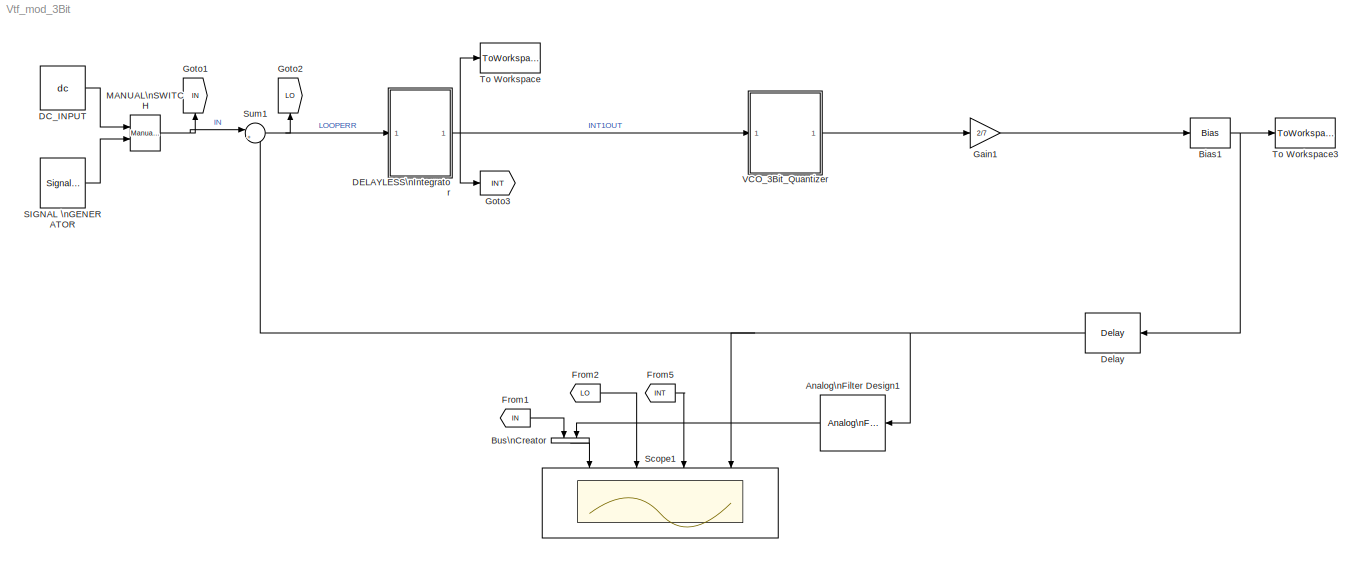
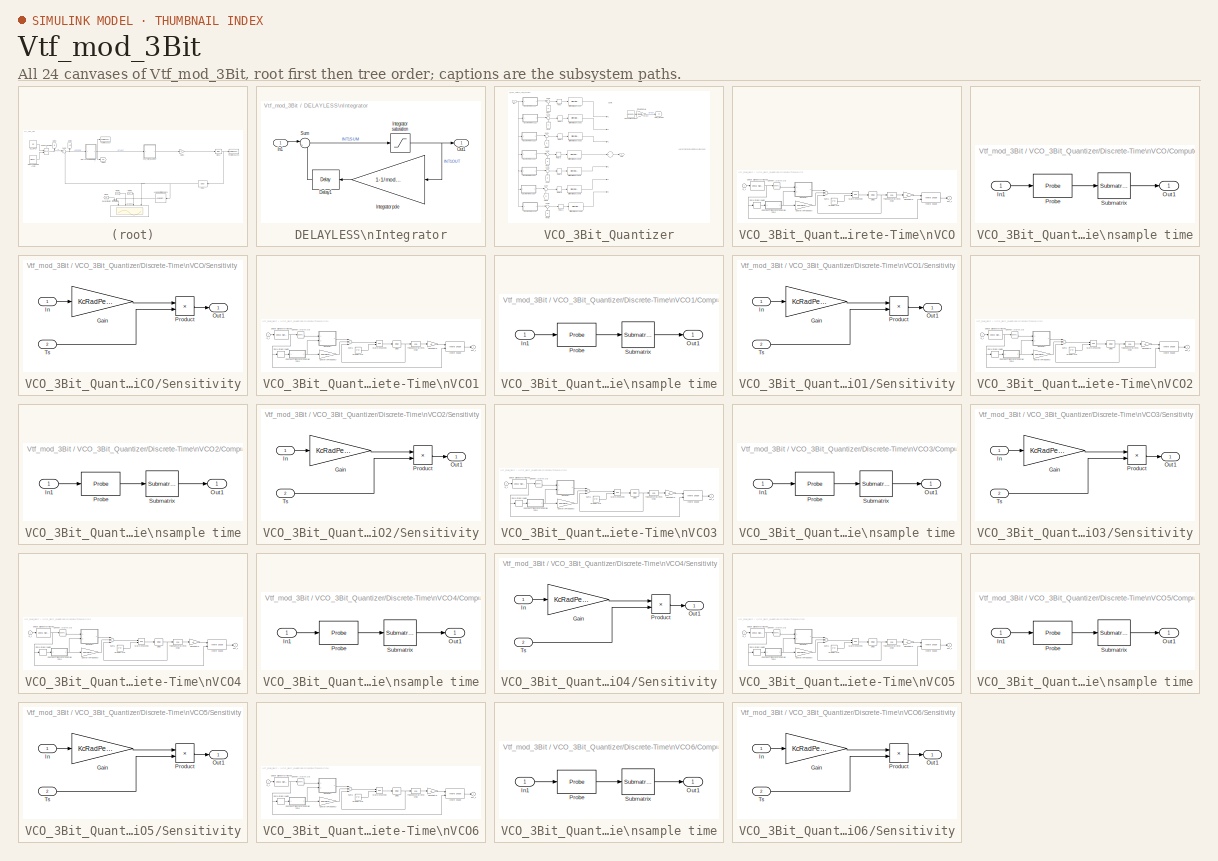
[diagram: thumbnail index - all 24 canvases of the model, root first then tree order]
MODEL Vtf_mod_3Bit
KIND model
BLOCK [Reference] Analog\nFilter Design1  REF=dsparch4/Analog\nFilter Design
  N = 8
  Ports = [1, 1]
  Rp = 2
  Rs = 40
  SID = 293
  SourceBlock = dsparch4/Analog\nFilter Design
  SourceType = Analog Filter Design
  Whi = 80
  Wlo = pi*(Fs/OSR)
  filttype = Lowpass
  method = Butterworth
BLOCK [Bias] Bias1
  Bias = -1
  SID = 264
  SaturateOnIntegerOverflow = off
BLOCK [BusCreator] Bus\nCreator
  DisplayOption = bar
  Inputs = 2
  Ports = [2, 1]
  SID = 294
BLOCK [Constant] DC_INPUT
  OutDataTypeStr = double
  SID = 232
  SampleTime = 1/Fs
  Value = dc
  VectorParams1D = off
BLOCK [SubSystem] DELAYLESS\nIntegrator
  FunctionWithSeparateData = off
  MaskHideContents = off
  MinAlgLoopOccurrences = off
  Opaque = off
  Ports = [1, 1]
  PropExecContextOutsideSubsystem = off
  RTWSystemCode = Auto
  RequestExecContextInheritance = off
  SID = 121
BLOCK [Reference] DELAYLESS\nIntegrator/Delay1  REF=dspsigops/Delay
  InputProcessing = Inherited (this choice will be removed - see release notes)
  Ports = [1, 1]
  SID = 193
  SourceBlock = dspsigops/Delay
  SourceType = Delay
  UserData = DataTag0
  UserDataPersistent = on
  delay = 1
  dif_ic_for_ch = off
  dif_ic_for_dly = off
  dly_unit = Samples
  ic = 0
  ic_detail = off
  reset_popup = None
BLOCK [Inport] DELAYLESS\nIntegrator/In1
  IconDisplay = Port number
  SID = 122
BLOCK [Gain] DELAYLESS\nIntegrator/Integrator pole
  AttributesFormatString = (model finite dc gain)
  Gain = 1-1/mod.igain1
  OutDataTypeStr = Inherit: Inherit via internal rule
  ParamDataTypeStr = Inherit: Inherit via internal rule
  SID = 124
  SaturateOnIntegerOverflow = off
BLOCK [Saturate] DELAYLESS\nIntegrator/Integrator saturation
  InputPortMap = u0
  LowerLimit = -(mod.isat1)
  Ports = [1, 1]
  SID = 125
  UpperLimit = mod.isat1
BLOCK [Outport] DELAYLESS\nIntegrator/Out1
  IconDisplay = Port number
  SID = 127
BLOCK [Sum] DELAYLESS\nIntegrator/Sum
  AttributesFormatString = Integrator summer
  IconShape = round
  InputSameDT = off
  Inputs = |++
  OutDataTypeStr = Inherit: Inherit via internal rule
  Ports = [2, 1]
  SID = 126
  SampleTime = 1/Fs
  SaturateOnIntegerOverflow = off
BLOCK [Reference] Delay  REF=dspsigops/Delay
  InputProcessing = Inherited (this choice will be removed - see release notes)
  Ports = [1, 1]
  SID = 222
  SourceBlock = dspsigops/Delay
  SourceType = Delay
  UserData = DataTag1
  UserDataPersistent = on
  delay = 1
  dif_ic_for_ch = off
  dif_ic_for_dly = off
  dly_unit = Samples
  ic = 0
  ic_detail = off
  reset_popup = None
BLOCK [From] From1
  GotoTag = IN
  SID = 295
BLOCK [From] From2
  GotoTag = LO
  SID = 296
BLOCK [From] From5
  GotoTag = INT
  SID = 297
BLOCK [Gain] Gain1
  Gain = 2/7
  OutDataTypeStr = Inherit: Inherit via internal rule
  ParamDataTypeStr = Inherit: Inherit via internal rule
  SID = 265
  SampleTime = 1/Fs
  SaturateOnIntegerOverflow = off
BLOCK [Goto] Goto1
  GotoTag = IN
  SID = 204
BLOCK [Goto] Goto2
  GotoTag = LO
  SID = 205
BLOCK [Goto] Goto3
  GotoTag = INT
  SID = 301
BLOCK [Reference] MANUAL\nSWITCH  REF=simulink/Signal\nRouting/Manual Switch
  AttributesFormatString = Double click to\\nselect the desired\\ninput
  Ports = [2, 1]
  SID = 233
  SourceBlock = simulink/Signal\nRouting/Manual Switch
  SourceType = Manual Switch
  action = 0
  sw = 0
  varsize = off
BLOCK [SignalGenerator] SIGNAL \nGENERATOR
  Amplitude = sinamp
  Frequency = sinfreq
  Ports = [0, 1]
  SID = 234
  VectorParams1D = off
BLOCK [Scope] Scope1
  DataFormat = StructureWithTime
  Floating = off
  NumInputPorts = 4
  Ports = [4]
  SID = 298
  SampleTime = 0
  ShowLegends = off
  TimeRange = 2.089895171320487e-05
  YMax = 1.1~1.6~1.6~0.1
  YMin = -1.1~-0.6~-0.6~-0.3
  ZoomMode = xonly
BLOCK [Sum] Sum1
  IconShape = round
  InputSameDT = off
  Inputs = |+-
  OutDataTypeStr = Inherit: Inherit via internal rule
  Ports = [2, 1]
  SID = 7
  SampleTime = 1/Fs
  SaturateOnIntegerOverflow = off
BLOCK [ToWorkspace] To Workspace
  MaxDataPoints = inf
  Ports = [1]
  SID = 235
  SampleTime = -1
  VariableName = INT1OUT
BLOCK [ToWorkspace] To Workspace3
  AttributesFormatString = Export output to\\nworkspace for\\npost-processing
  MaxDataPoints = inf
  Ports = [1]
  SID = 225
  SampleTime = -1
  VariableName = mod_out
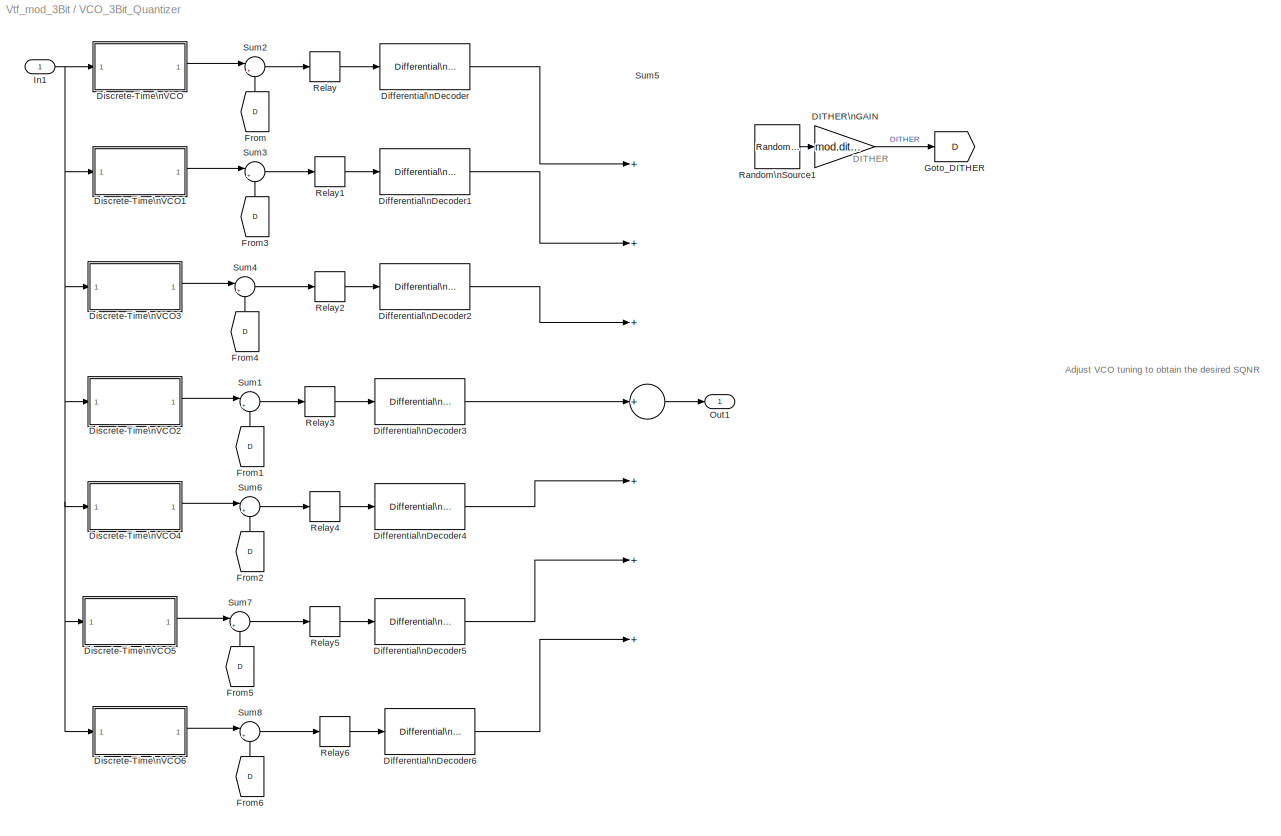
BLOCK [SubSystem] VCO_3Bit_Quantizer
  FunctionWithSeparateData = off
  MaskHideContents = off
  MinAlgLoopOccurrences = off
  Opaque = off
  Ports = [1, 1]
  PropExecContextOutsideSubsystem = off
  RTWSystemCode = Auto
  RequestExecContextInheritance = off
  SID = 302
BLOCK [Gain] VCO_3Bit_Quantizer/DITHER\nGAIN
  Gain = mod.dither
  OutDataTypeStr = Inherit: Inherit via internal rule
  ParamDataTypeStr = Inherit: Inherit via internal rule
  SID = 228
  SampleTime = 1/Fs
  SaturateOnIntegerOverflow = off
BLOCK [Reference] VCO_3Bit_Quantizer/Differential\nDecoder  REF=commsrccod2/Differential\nDecoder
  InitCond = 0
  Ports = [1, 1]
  SID = 151
  SourceBlock = commsrccod2/Differential\nDecoder
  SourceType = Differential Decoder
BLOCK [Reference] VCO_3Bit_Quantizer/Differential\nDecoder1  REF=commsrccod2/Differential\nDecoder
  InitCond = 0
  Ports = [1, 1]
  SID = 246
  SourceBlock = commsrccod2/Differential\nDecoder
  SourceType = Differential Decoder
BLOCK [Reference] VCO_3Bit_Quantizer/Differential\nDecoder2  REF=commsrccod2/Differential\nDecoder
  InitCond = 0
  Ports = [1, 1]
  SID = 255
  SourceBlock = commsrccod2/Differential\nDecoder
  SourceType = Differential Decoder
BLOCK [Reference] VCO_3Bit_Quantizer/Differential\nDecoder3  REF=commsrccod2/Differential\nDecoder
  InitCond = 0
  Ports = [1, 1]
  SID = 310
  SourceBlock = commsrccod2/Differential\nDecoder
  SourceType = Differential Decoder
BLOCK [Reference] VCO_3Bit_Quantizer/Differential\nDecoder4  REF=commsrccod2/Differential\nDecoder
  InitCond = 0
  Ports = [1, 1]
  SID = 311
  SourceBlock = commsrccod2/Differential\nDecoder
  SourceType = Differential Decoder
BLOCK [Reference] VCO_3Bit_Quantizer/Differential\nDecoder5  REF=commsrccod2/Differential\nDecoder
  InitCond = 0
  Ports = [1, 1]
  SID = 312
  SourceBlock = commsrccod2/Differential\nDecoder
  SourceType = Differential Decoder
BLOCK [Reference] VCO_3Bit_Quantizer/Differential\nDecoder6  REF=commsrccod2/Differential\nDecoder
  InitCond = 0
  Ports = [1, 1]
  SID = 332
  SourceBlock = commsrccod2/Differential\nDecoder
  SourceType = Differential Decoder
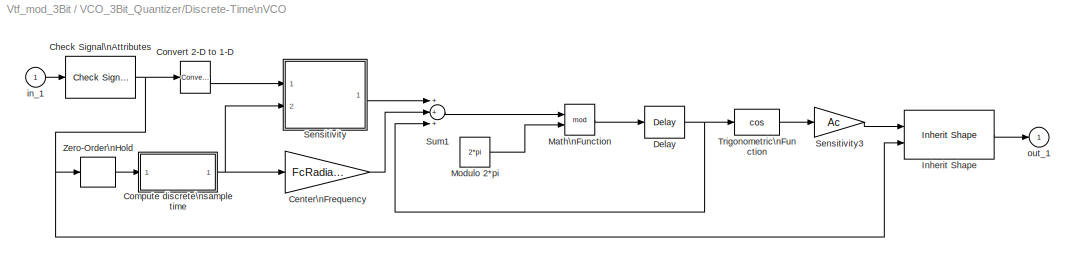
BLOCK [SubSystem] VCO_3Bit_Quantizer/Discrete-Time\nVCO
  AncestorBlock = commsynccomp2/Discrete-Time\nVCO
  FunctionWithSeparateData = off
  MaskCallbackString = ||||
  MaskCapabilities = commmaskedcaps(gcbh)
  MaskDescription = Generate a discrete-time output signal whose frequency changes in response to the amplitude variations of the input signal. The input signal must be a scalar.
  MaskDisplay = disp('Discrete-Time\\nVCO')
  MaskEnableString = on,on,on,on,on
  MaskHelp = helpview(commbhelp)
  MaskHideContents = off
  MaskIconFrame = on
  MaskIconOpaque = on
  MaskIconRotate = none
  MaskIconUnits = autoscale
  MaskInitialization = if ( (length(Ac)~=1) || (length(Fc)~=1) || (length(Kc)~=1) || (length(Ph)~=1) || (length(ts)~=1) ) \n	error('commblks:DiscTimeVCO:InvalidMaskParams',...\n          'Mask parameters must be scalar values.');\nend\nFcRadians = 2*pi*Fc;\nKcRadPerV = 2*pi*Kc;\n  <repeated x7 — deduplicated; at blocks: Discrete-Time\nVCO, Discrete-Time\nVCO1, Discrete-Time\nVCO2, Discrete-Time\nVCO3, Discrete-Time\nVCO4, Discrete-Time\nVCO5, Discrete-Time\nVCO6>
  MaskPortRotate = default
  MaskPromptString = Output amplitude (V):|Quiescent frequency (Hz):|Input sensitivity (Hz/V):|Initial phase (rad):|Sample time (s):
  MaskSelfModifiable = on
  MaskStyleString = edit,edit,edit,edit,edit
  MaskToolTipString = on,on,on,on,on
  MaskTunableValueString = on,on,on,on,on
  MaskType = Discrete-Time VCO
  MaskValueString = sinamp*2|Fs/128|sinfreq*25|0|1/Fs
  MaskVariables = Ac=@1;Fc=@2;Kc=@3;Ph=@4;ts=@5;
  MaskVisibilityString = on,on,on,on,on
  MinAlgLoopOccurrences = off
  Opaque = off
  Ports = [1, 1]
  PropExecContextOutsideSubsystem = off
  RTWSystemCode = Auto
  RequestExecContextInheritance = off
  SID = 64
BLOCK [Gain] VCO_3Bit_Quantizer/Discrete-Time\nVCO/Center\nFrequency
  Gain = FcRadians
  OutDataTypeStr = Inherit: Inherit via back propagation
  ParamDataTypeStr = float('double')
  RndMeth = Nearest
  SID = 64:2
  SampleTime = ts
BLOCK [Reference] VCO_3Bit_Quantizer/Discrete-Time\nVCO/Check Signal\nAttributes  REF=dspsigattribs/Check Signal\nAttributes
  Complexity = Ignore
  DatatypeCheckMethod = Is...
  DatatypeGeneral = Floating-point
  Dimensions = Scalar (1-D or 2-D)
  DimsCheckMethod = Is...
  DtypeFixedSpecific = Any fixed-point
  DtypeFloatSpecific = Any floating-point
  DtypeIntSpecific = Any integer
  Frame = Ignore
  Ports = [1, 1]
  SID = 64:3
  SampleMode = Discrete
  SigAttribCheckMethod = Does not match attributes exactly
  SourceBlock = dspsigattribs/Check Signal\nAttributes
  SourceType = Check Signal Attributes
BLOCK [SubSystem] VCO_3Bit_Quantizer/Discrete-Time\nVCO/Compute discrete\nsample time
  FunctionWithSeparateData = off
  MaskHideContents = off
  MinAlgLoopOccurrences = off
  Opaque = off
  Ports = [1, 1]
  PropExecContextOutsideSubsystem = off
  RTWSystemCode = Auto
  RequestExecContextInheritance = off
  SID = 64:4
BLOCK [Inport] VCO_3Bit_Quantizer/Discrete-Time\nVCO/Compute discrete\nsample time/In1
  IconDisplay = Port number
  SID = 64:5
BLOCK [Outport] VCO_3Bit_Quantizer/Discrete-Time\nVCO/Compute discrete\nsample time/Out1
  IconDisplay = Port number
  SID = 64:8
BLOCK [Probe] VCO_3Bit_Quantizer/Discrete-Time\nVCO/Compute discrete\nsample time/Probe
  Ports = [1, 1]
  ProbeComplexSignal = off
  ProbeWidth = off
  SID = 64:6
BLOCK [Reference] VCO_3Bit_Quantizer/Discrete-Time\nVCO/Compute discrete\nsample time/Submatrix  REF=dspmtrx3/Submatrix
  ColEndIndex = 1
  ColEndMode = Last
  ColSpan = One column
  ColStartIndex = 1
  ColStartMode = First
  Ports = [1, 1]
  RowEndIndex = 1
  RowEndMode = Last
  RowSpan = One row
  RowStartIndex = 1
  RowStartMode = First
  SID = 64:7
  SourceBlock = dspmtrx3/Submatrix
  SourceType = Submatrix
BLOCK [Reference] VCO_3Bit_Quantizer/Discrete-Time\nVCO/Convert 2-D to 1-D  REF=dspsigattribs/Convert 2-D to 1-D
  Ports = [1, 1]
  SID = 64:9
  SourceBlock = dspsigattribs/Convert 2-D to 1-D
  SourceType = Convert 2-D to 1-D
BLOCK [Reference] VCO_3Bit_Quantizer/Discrete-Time\nVCO/Delay  REF=dspsigops/Delay
  InputProcessing = Columns as channels (frame based)
  Ports = [1, 1]
  SID = 64:10
  SourceBlock = dspsigops/Delay
  SourceType = Delay
  UserData = DataTag2
  UserDataPersistent = on
  delay = 1
  dif_ic_for_ch = off
  dif_ic_for_dly = off
  dly_unit = Samples
  ic = Ph
  ic_detail = on
  reset_popup = None
BLOCK [Reference] VCO_3Bit_Quantizer/Discrete-Time\nVCO/Inherit Shape  REF=commblksprivate/Inherit Shape
  Ports = [2, 1]
  SID = 64:11
  SourceBlock = commblksprivate/Inherit Shape
  SourceType = Inherit Shape
BLOCK [Math] VCO_3Bit_Quantizer/Discrete-Time\nVCO/Math\nFunction
  Operator = mod
  Ports = [2, 1]
  SID = 64:12
BLOCK [Constant] VCO_3Bit_Quantizer/Discrete-Time\nVCO/Modulo 2*pi
  OutDataTypeStr = Inherit: Inherit via back propagation
  SID = 64:13
  SampleTime = ts
  Value = 2*pi
BLOCK [SubSystem] VCO_3Bit_Quantizer/Discrete-Time\nVCO/Sensitivity
  FunctionWithSeparateData = off
  MaskHideContents = off
  MinAlgLoopOccurrences = off
  Opaque = off
  Ports = [2, 1]
  PropExecContextOutsideSubsystem = off
  RTWSystemCode = Auto
  RequestExecContextInheritance = off
  SID = 64:14
BLOCK [Gain] VCO_3Bit_Quantizer/Discrete-Time\nVCO/Sensitivity/Gain
  Gain = KcRadPerV
  ParamDataTypeStr = float('double')
  SID = 64:17
BLOCK [Inport] VCO_3Bit_Quantizer/Discrete-Time\nVCO/Sensitivity/In
  IconDisplay = Port number
  SID = 64:15
BLOCK [Outport] VCO_3Bit_Quantizer/Discrete-Time\nVCO/Sensitivity/Out1
  IconDisplay = Port number
  SID = 64:19
BLOCK [Product] VCO_3Bit_Quantizer/Discrete-Time\nVCO/Sensitivity/Product
  InputSameDT = off
  Ports = [2, 1]
  RndMeth = Nearest
  SID = 64:18
BLOCK [Inport] VCO_3Bit_Quantizer/Discrete-Time\nVCO/Sensitivity/Ts
  IconDisplay = Port number
  Port = 2
  SID = 64:16
BLOCK [Gain] VCO_3Bit_Quantizer/Discrete-Time\nVCO/Sensitivity3
  Gain = Ac
  SID = 64:20
BLOCK [Sum] VCO_3Bit_Quantizer/Discrete-Time\nVCO/Sum1
  Inputs = +++
  Ports = [3, 1]
  SID = 64:21
BLOCK [Trigonometry] VCO_3Bit_Quantizer/Discrete-Time\nVCO/Trigonometric\nFunction
  Operator = cos
  Ports = [1, 1]
  SID = 64:22
BLOCK [ZeroOrderHold] VCO_3Bit_Quantizer/Discrete-Time\nVCO/Zero-Order\nHold
  SID = 64:23
  SampleTime = ts
BLOCK [Inport] VCO_3Bit_Quantizer/Discrete-Time\nVCO/in_1
  IconDisplay = Port number
  SID = 64:1
BLOCK [Outport] VCO_3Bit_Quantizer/Discrete-Time\nVCO/out_1
  IconDisplay = Port number
  InitialOutput = 0
  SID = 64:24
BLOCK [SubSystem] VCO_3Bit_Quantizer/Discrete-Time\nVCO1
  AncestorBlock = commsynccomp2/Discrete-Time\nVCO
  FunctionWithSeparateData = off
  MaskCallbackString = ||||
  MaskCapabilities = commmaskedcaps(gcbh)
  MaskDescription = Generate a discrete-time output signal whose frequency changes in response to the amplitude variations of the input signal. The input signal must be a scalar.
  MaskDisplay = disp('Discrete-Time\\nVCO')
  MaskEnableString = on,on,on,on,on
  MaskHelp = helpview(commbhelp)
  MaskHideContents = off
  MaskIconFrame = on
  MaskIconOpaque = on
  MaskIconRotate = none
  MaskIconUnits = autoscale
  MaskPortRotate = default
  MaskPromptString = Output amplitude (V):|Quiescent frequency (Hz):|Input sensitivity (Hz/V):|Initial phase (rad):|Sample time (s):
  MaskSelfModifiable = on
  MaskStyleString = edit,edit,edit,edit,edit
  MaskToolTipString = on,on,on,on,on
  MaskTunableValueString = on,on,on,on,on
  MaskType = Discrete-Time VCO
  MaskValueString = sinamp*2|Fs/128|sinfreq*25|0.4487|1/Fs
  MaskVariables = Ac=@1;Fc=@2;Kc=@3;Ph=@4;ts=@5;
  MaskVisibilityString = on,on,on,on,on
  MinAlgLoopOccurrences = off
  Opaque = off
  Ports = [1, 1]
  PropExecContextOutsideSubsystem = off
  RTWSystemCode = Auto
  RequestExecContextInheritance = off
  SID = 288
BLOCK [Gain] VCO_3Bit_Quantizer/Discrete-Time\nVCO1/Center\nFrequency
  Gain = FcRadians
  OutDataTypeStr = Inherit: Inherit via back propagation
  ParamDataTypeStr = float('double')
  RndMeth = Nearest
  SID = 288:2
  SampleTime = ts
BLOCK [Reference] VCO_3Bit_Quantizer/Discrete-Time\nVCO1/Check Signal\nAttributes  REF=dspsigattribs/Check Signal\nAttributes
  Complexity = Ignore
  DatatypeCheckMethod = Is...
  DatatypeGeneral = Floating-point
  Dimensions = Scalar (1-D or 2-D)
  DimsCheckMethod = Is...
  DtypeFixedSpecific = Any fixed-point
  DtypeFloatSpecific = Any floating-point
  DtypeIntSpecific = Any integer
  Frame = Ignore
  Ports = [1, 1]
  SID = 288:3
  SampleMode = Discrete
  SigAttribCheckMethod = Does not match attributes exactly
  SourceBlock = dspsigattribs/Check Signal\nAttributes
  SourceType = Check Signal Attributes
BLOCK [SubSystem] VCO_3Bit_Quantizer/Discrete-Time\nVCO1/Compute discrete\nsample time
  FunctionWithSeparateData = off
  MaskHideContents = off
  MinAlgLoopOccurrences = off
  Opaque = off
  Ports = [1, 1]
  PropExecContextOutsideSubsystem = off
  RTWSystemCode = Auto
  RequestExecContextInheritance = off
  SID = 288:4
BLOCK [Inport] VCO_3Bit_Quantizer/Discrete-Time\nVCO1/Compute discrete\nsample time/In1
  IconDisplay = Port number
  SID = 288:5
BLOCK [Outport] VCO_3Bit_Quantizer/Discrete-Time\nVCO1/Compute discrete\nsample time/Out1
  IconDisplay = Port number
  SID = 288:8
BLOCK [Probe] VCO_3Bit_Quantizer/Discrete-Time\nVCO1/Compute discrete\nsample time/Probe
  Ports = [1, 1]
  ProbeComplexSignal = off
  ProbeWidth = off
  SID = 288:6
BLOCK [Reference] VCO_3Bit_Quantizer/Discrete-Time\nVCO1/Compute discrete\nsample time/Submatrix  REF=dspmtrx3/Submatrix
  ColEndIndex = 1
  ColEndMode = Last
  ColSpan = One column
  ColStartIndex = 1
  ColStartMode = First
  Ports = [1, 1]
  RowEndIndex = 1
  RowEndMode = Last
  RowSpan = One row
  RowStartIndex = 1
  RowStartMode = First
  SID = 288:7
  SourceBlock = dspmtrx3/Submatrix
  SourceType = Submatrix
BLOCK [Reference] VCO_3Bit_Quantizer/Discrete-Time\nVCO1/Convert 2-D to 1-D  REF=dspsigattribs/Convert 2-D to 1-D
  Ports = [1, 1]
  SID = 288:9
  SourceBlock = dspsigattribs/Convert 2-D to 1-D
  SourceType = Convert 2-D to 1-D
BLOCK [Reference] VCO_3Bit_Quantizer/Discrete-Time\nVCO1/Delay  REF=dspsigops/Delay
  InputProcessing = Columns as channels (frame based)
  Ports = [1, 1]
  SID = 288:10
  SourceBlock = dspsigops/Delay
  SourceType = Delay
  UserData = DataTag3
  UserDataPersistent = on
  delay = 1
  dif_ic_for_ch = off
  dif_ic_for_dly = off
  dly_unit = Samples
  ic = Ph
  ic_detail = on
  reset_popup = None
BLOCK [Reference] VCO_3Bit_Quantizer/Discrete-Time\nVCO1/Inherit Shape  REF=commblksprivate/Inherit Shape
  Ports = [2, 1]
  SID = 288:11
  SourceBlock = commblksprivate/Inherit Shape
  SourceType = Inherit Shape
BLOCK [Math] VCO_3Bit_Quantizer/Discrete-Time\nVCO1/Math\nFunction
  Operator = mod
  Ports = [2, 1]
  SID = 288:12
BLOCK [Constant] VCO_3Bit_Quantizer/Discrete-Time\nVCO1/Modulo 2*pi
  OutDataTypeStr = Inherit: Inherit via back propagation
  SID = 288:13
  SampleTime = ts
  Value = 2*pi
BLOCK [SubSystem] VCO_3Bit_Quantizer/Discrete-Time\nVCO1/Sensitivity
  FunctionWithSeparateData = off
  MaskHideContents = off
  MinAlgLoopOccurrences = off
  Opaque = off
  Ports = [2, 1]
  PropExecContextOutsideSubsystem = off
  RTWSystemCode = Auto
  RequestExecContextInheritance = off
  SID = 288:14
BLOCK [Gain] VCO_3Bit_Quantizer/Discrete-Time\nVCO1/Sensitivity/Gain
  Gain = KcRadPerV
  ParamDataTypeStr = float('double')
  SID = 288:17
BLOCK [Inport] VCO_3Bit_Quantizer/Discrete-Time\nVCO1/Sensitivity/In
  IconDisplay = Port number
  SID = 288:15
BLOCK [Outport] VCO_3Bit_Quantizer/Discrete-Time\nVCO1/Sensitivity/Out1
  IconDisplay = Port number
  SID = 288:19
BLOCK [Product] VCO_3Bit_Quantizer/Discrete-Time\nVCO1/Sensitivity/Product
  InputSameDT = off
  Ports = [2, 1]
  RndMeth = Nearest
  SID = 288:18
BLOCK [Inport] VCO_3Bit_Quantizer/Discrete-Time\nVCO1/Sensitivity/Ts
  IconDisplay = Port number
  Port = 2
  SID = 288:16
BLOCK [Gain] VCO_3Bit_Quantizer/Discrete-Time\nVCO1/Sensitivity3
  Gain = Ac
  SID = 288:20
BLOCK [Sum] VCO_3Bit_Quantizer/Discrete-Time\nVCO1/Sum1
  Inputs = +++
  Ports = [3, 1]
  SID = 288:21
BLOCK [Trigonometry] VCO_3Bit_Quantizer/Discrete-Time\nVCO1/Trigonometric\nFunction
  Operator = cos
  Ports = [1, 1]
  SID = 288:22
BLOCK [ZeroOrderHold] VCO_3Bit_Quantizer/Discrete-Time\nVCO1/Zero-Order\nHold
  SID = 288:23
  SampleTime = ts
BLOCK [Inport] VCO_3Bit_Quantizer/Discrete-Time\nVCO1/in_1
  IconDisplay = Port number
  SID = 288:1
BLOCK [Outport] VCO_3Bit_Quantizer/Discrete-Time\nVCO1/out_1
  IconDisplay = Port number
  InitialOutput = 0
  SID = 288:24
BLOCK [SubSystem] VCO_3Bit_Quantizer/Discrete-Time\nVCO2
  AncestorBlock = commsynccomp2/Discrete-Time\nVCO
  FunctionWithSeparateData = off
  MaskCallbackString = ||||
  MaskCapabilities = commmaskedcaps(gcbh)
  MaskDescription = Generate a discrete-time output signal whose frequency changes in response to the amplitude variations of the input signal. The input signal must be a scalar.
  MaskDisplay = disp('Discrete-Time\\nVCO')
  MaskEnableString = on,on,on,on,on
  MaskHelp = helpview(commbhelp)
  MaskHideContents = off
  MaskIconFrame = on
  MaskIconOpaque = on
  MaskIconRotate = none
  MaskIconUnits = autoscale
  MaskPortRotate = default
  MaskPromptString = Output amplitude (V):|Quiescent frequency (Hz):|Input sensitivity (Hz/V):|Initial phase (rad):|Sample time (s):
  MaskSelfModifiable = on
  MaskStyleString = edit,edit,edit,edit,edit
  MaskToolTipString = on,on,on,on,on
  MaskTunableValueString = on,on,on,on,on
  MaskType = Discrete-Time VCO
  MaskValueString = sinamp*2|Fs/128|sinfreq*25|1.34|1/Fs
  MaskVariables = Ac=@1;Fc=@2;Kc=@3;Ph=@4;ts=@5;
  MaskVisibilityString = on,on,on,on,on
  MinAlgLoopOccurrences = off
  Opaque = off
  Ports = [1, 1]
  PropExecContextOutsideSubsystem = off
  RTWSystemCode = Auto
  RequestExecContextInheritance = off
  SID = 313
BLOCK [Gain] VCO_3Bit_Quantizer/Discrete-Time\nVCO2/Center\nFrequency
  Gain = FcRadians
  OutDataTypeStr = Inherit: Inherit via back propagation
  ParamDataTypeStr = float('double')
  RndMeth = Nearest
  SID = 313:2
  SampleTime = ts
BLOCK [Reference] VCO_3Bit_Quantizer/Discrete-Time\nVCO2/Check Signal\nAttributes  REF=dspsigattribs/Check Signal\nAttributes
  Complexity = Ignore
  DatatypeCheckMethod = Is...
  DatatypeGeneral = Floating-point
  Dimensions = Scalar (1-D or 2-D)
  DimsCheckMethod = Is...
  DtypeFixedSpecific = Any fixed-point
  DtypeFloatSpecific = Any floating-point
  DtypeIntSpecific = Any integer
  Frame = Ignore
  Ports = [1, 1]
  SID = 313:3
  SampleMode = Discrete
  SigAttribCheckMethod = Does not match attributes exactly
  SourceBlock = dspsigattribs/Check Signal\nAttributes
  SourceType = Check Signal Attributes
BLOCK [SubSystem] VCO_3Bit_Quantizer/Discrete-Time\nVCO2/Compute discrete\nsample time
  FunctionWithSeparateData = off
  MaskHideContents = off
  MinAlgLoopOccurrences = off
  Opaque = off
  Ports = [1, 1]
  PropExecContextOutsideSubsystem = off
  RTWSystemCode = Auto
  RequestExecContextInheritance = off
  SID = 313:4
BLOCK [Inport] VCO_3Bit_Quantizer/Discrete-Time\nVCO2/Compute discrete\nsample time/In1
  IconDisplay = Port number
  SID = 313:5
BLOCK [Outport] VCO_3Bit_Quantizer/Discrete-Time\nVCO2/Compute discrete\nsample time/Out1
  IconDisplay = Port number
  SID = 313:8
BLOCK [Probe] VCO_3Bit_Quantizer/Discrete-Time\nVCO2/Compute discrete\nsample time/Probe
  Ports = [1, 1]
  ProbeComplexSignal = off
  ProbeWidth = off
  SID = 313:6
BLOCK [Reference] VCO_3Bit_Quantizer/Discrete-Time\nVCO2/Compute discrete\nsample time/Submatrix  REF=dspmtrx3/Submatrix
  ColEndIndex = 1
  ColEndMode = Last
  ColSpan = One column
  ColStartIndex = 1
  ColStartMode = First
  Ports = [1, 1]
  RowEndIndex = 1
  RowEndMode = Last
  RowSpan = One row
  RowStartIndex = 1
  RowStartMode = First
  SID = 313:7
  SourceBlock = dspmtrx3/Submatrix
  SourceType = Submatrix
BLOCK [Reference] VCO_3Bit_Quantizer/Discrete-Time\nVCO2/Convert 2-D to 1-D  REF=dspsigattribs/Convert 2-D to 1-D
  Ports = [1, 1]
  SID = 313:9
  SourceBlock = dspsigattribs/Convert 2-D to 1-D
  SourceType = Convert 2-D to 1-D
BLOCK [Reference] VCO_3Bit_Quantizer/Discrete-Time\nVCO2/Delay  REF=dspsigops/Delay
  InputProcessing = Columns as channels (frame based)
  Ports = [1, 1]
  SID = 313:10
  SourceBlock = dspsigops/Delay
  SourceType = Delay
  UserData = DataTag4
  UserDataPersistent = on
  delay = 1
  dif_ic_for_ch = off
  dif_ic_for_dly = off
  dly_unit = Samples
  ic = Ph
  ic_detail = on
  reset_popup = None
BLOCK [Reference] VCO_3Bit_Quantizer/Discrete-Time\nVCO2/Inherit Shape  REF=commblksprivate/Inherit Shape
  Ports = [2, 1]
  SID = 313:11
  SourceBlock = commblksprivate/Inherit Shape
  SourceType = Inherit Shape
BLOCK [Math] VCO_3Bit_Quantizer/Discrete-Time\nVCO2/Math\nFunction
  Operator = mod
  Ports = [2, 1]
  SID = 313:12
BLOCK [Constant] VCO_3Bit_Quantizer/Discrete-Time\nVCO2/Modulo 2*pi
  OutDataTypeStr = Inherit: Inherit via back propagation
  SID = 313:13
  SampleTime = ts
  Value = 2*pi
BLOCK [SubSystem] VCO_3Bit_Quantizer/Discrete-Time\nVCO2/Sensitivity
  FunctionWithSeparateData = off
  MaskHideContents = off
  MinAlgLoopOccurrences = off
  Opaque = off
  Ports = [2, 1]
  PropExecContextOutsideSubsystem = off
  RTWSystemCode = Auto
  RequestExecContextInheritance = off
  SID = 313:14
BLOCK [Gain] VCO_3Bit_Quantizer/Discrete-Time\nVCO2/Sensitivity/Gain
  Gain = KcRadPerV
  ParamDataTypeStr = float('double')
  SID = 313:17
BLOCK [Inport] VCO_3Bit_Quantizer/Discrete-Time\nVCO2/Sensitivity/In
  IconDisplay = Port number
  SID = 313:15
BLOCK [Outport] VCO_3Bit_Quantizer/Discrete-Time\nVCO2/Sensitivity/Out1
  IconDisplay = Port number
  SID = 313:19
BLOCK [Product] VCO_3Bit_Quantizer/Discrete-Time\nVCO2/Sensitivity/Product
  InputSameDT = off
  Ports = [2, 1]
  RndMeth = Nearest
  SID = 313:18
BLOCK [Inport] VCO_3Bit_Quantizer/Discrete-Time\nVCO2/Sensitivity/Ts
  IconDisplay = Port number
  Port = 2
  SID = 313:16
BLOCK [Gain] VCO_3Bit_Quantizer/Discrete-Time\nVCO2/Sensitivity3
  Gain = Ac
  SID = 313:20
BLOCK [Sum] VCO_3Bit_Quantizer/Discrete-Time\nVCO2/Sum1
  Inputs = +++
  Ports = [3, 1]
  SID = 313:21
BLOCK [Trigonometry] VCO_3Bit_Quantizer/Discrete-Time\nVCO2/Trigonometric\nFunction
  Operator = cos
  Ports = [1, 1]
  SID = 313:22
BLOCK [ZeroOrderHold] VCO_3Bit_Quantizer/Discrete-Time\nVCO2/Zero-Order\nHold
  SID = 313:23
  SampleTime = ts
BLOCK [Inport] VCO_3Bit_Quantizer/Discrete-Time\nVCO2/in_1
  IconDisplay = Port number
  SID = 313:1
BLOCK [Outport] VCO_3Bit_Quantizer/Discrete-Time\nVCO2/out_1
  IconDisplay = Port number
  InitialOutput = 0
  SID = 313:24
BLOCK [SubSystem] VCO_3Bit_Quantizer/Discrete-Time\nVCO3
  AncestorBlock = commsynccomp2/Discrete-Time\nVCO
  FunctionWithSeparateData = off
  MaskCallbackString = ||||
  MaskCapabilities = commmaskedcaps(gcbh)
  MaskDescription = Generate a discrete-time output signal whose frequency changes in response to the amplitude variations of the input signal. The input signal must be a scalar.
  MaskDisplay = disp('Discrete-Time\\nVCO')
  MaskEnableString = on,on,on,on,on
  MaskHelp = helpview(commbhelp)
  MaskHideContents = off
  MaskIconFrame = on
  MaskIconOpaque = on
  MaskIconRotate = none
  MaskIconUnits = autoscale
  MaskPortRotate = default
  MaskPromptString = Output amplitude (V):|Quiescent frequency (Hz):|Input sensitivity (Hz/V):|Initial phase (rad):|Sample time (s):
  MaskSelfModifiable = on
  MaskStyleString = edit,edit,edit,edit,edit
  MaskToolTipString = on,on,on,on,on
  MaskTunableValueString = on,on,on,on,on
  MaskType = Discrete-Time VCO
  MaskValueString = sinamp*2|Fs/128|sinfreq*25|0.89|1/Fs
  MaskVariables = Ac=@1;Fc=@2;Kc=@3;Ph=@4;ts=@5;
  MaskVisibilityString = on,on,on,on,on
  MinAlgLoopOccurrences = off
  Opaque = off
  Ports = [1, 1]
  PropExecContextOutsideSubsystem = off
  RTWSystemCode = Auto
  RequestExecContextInheritance = off
  SID = 289
BLOCK [Gain] VCO_3Bit_Quantizer/Discrete-Time\nVCO3/Center\nFrequency
  Gain = FcRadians
  OutDataTypeStr = Inherit: Inherit via back propagation
  ParamDataTypeStr = float('double')
  RndMeth = Nearest
  SID = 289:2
  SampleTime = ts
BLOCK [Reference] VCO_3Bit_Quantizer/Discrete-Time\nVCO3/Check Signal\nAttributes  REF=dspsigattribs/Check Signal\nAttributes
  Complexity = Ignore
  DatatypeCheckMethod = Is...
  DatatypeGeneral = Floating-point
  Dimensions = Scalar (1-D or 2-D)
  DimsCheckMethod = Is...
  DtypeFixedSpecific = Any fixed-point
  DtypeFloatSpecific = Any floating-point
  DtypeIntSpecific = Any integer
  Frame = Ignore
  Ports = [1, 1]
  SID = 289:3
  SampleMode = Discrete
  SigAttribCheckMethod = Does not match attributes exactly
  SourceBlock = dspsigattribs/Check Signal\nAttributes
  SourceType = Check Signal Attributes
BLOCK [SubSystem] VCO_3Bit_Quantizer/Discrete-Time\nVCO3/Compute discrete\nsample time
  FunctionWithSeparateData = off
  MaskHideContents = off
  MinAlgLoopOccurrences = off
  Opaque = off
  Ports = [1, 1]
  PropExecContextOutsideSubsystem = off
  RTWSystemCode = Auto
  RequestExecContextInheritance = off
  SID = 289:4
BLOCK [Inport] VCO_3Bit_Quantizer/Discrete-Time\nVCO3/Compute discrete\nsample time/In1
  IconDisplay = Port number
  SID = 289:5
BLOCK [Outport] VCO_3Bit_Quantizer/Discrete-Time\nVCO3/Compute discrete\nsample time/Out1
  IconDisplay = Port number
  SID = 289:8
BLOCK [Probe] VCO_3Bit_Quantizer/Discrete-Time\nVCO3/Compute discrete\nsample time/Probe
  Ports = [1, 1]
  ProbeComplexSignal = off
  ProbeWidth = off
  SID = 289:6
BLOCK [Reference] VCO_3Bit_Quantizer/Discrete-Time\nVCO3/Compute discrete\nsample time/Submatrix  REF=dspmtrx3/Submatrix
  ColEndIndex = 1
  ColEndMode = Last
  ColSpan = One column
  ColStartIndex = 1
  ColStartMode = First
  Ports = [1, 1]
  RowEndIndex = 1
  RowEndMode = Last
  RowSpan = One row
  RowStartIndex = 1
  RowStartMode = First
  SID = 289:7
  SourceBlock = dspmtrx3/Submatrix
  SourceType = Submatrix
BLOCK [Reference] VCO_3Bit_Quantizer/Discrete-Time\nVCO3/Convert 2-D to 1-D  REF=dspsigattribs/Convert 2-D to 1-D
  Ports = [1, 1]
  SID = 289:9
  SourceBlock = dspsigattribs/Convert 2-D to 1-D
  SourceType = Convert 2-D to 1-D
BLOCK [Reference] VCO_3Bit_Quantizer/Discrete-Time\nVCO3/Delay  REF=dspsigops/Delay
  InputProcessing = Columns as channels (frame based)
  Ports = [1, 1]
  SID = 289:10
  SourceBlock = dspsigops/Delay
  SourceType = Delay
  UserData = DataTag5
  UserDataPersistent = on
  delay = 1
  dif_ic_for_ch = off
  dif_ic_for_dly = off
  dly_unit = Samples
  ic = Ph
  ic_detail = on
  reset_popup = None
BLOCK [Reference] VCO_3Bit_Quantizer/Discrete-Time\nVCO3/Inherit Shape  REF=commblksprivate/Inherit Shape
  Ports = [2, 1]
  SID = 289:11
  SourceBlock = commblksprivate/Inherit Shape
  SourceType = Inherit Shape
BLOCK [Math] VCO_3Bit_Quantizer/Discrete-Time\nVCO3/Math\nFunction
  Operator = mod
  Ports = [2, 1]
  SID = 289:12
BLOCK [Constant] VCO_3Bit_Quantizer/Discrete-Time\nVCO3/Modulo 2*pi
  OutDataTypeStr = Inherit: Inherit via back propagation
  SID = 289:13
  SampleTime = ts
  Value = 2*pi
BLOCK [SubSystem] VCO_3Bit_Quantizer/Discrete-Time\nVCO3/Sensitivity
  FunctionWithSeparateData = off
  MaskHideContents = off
  MinAlgLoopOccurrences = off
  Opaque = off
  Ports = [2, 1]
  PropExecContextOutsideSubsystem = off
  RTWSystemCode = Auto
  RequestExecContextInheritance = off
  SID = 289:14
BLOCK [Gain] VCO_3Bit_Quantizer/Discrete-Time\nVCO3/Sensitivity/Gain
  Gain = KcRadPerV
  ParamDataTypeStr = float('double')
  SID = 289:17
BLOCK [Inport] VCO_3Bit_Quantizer/Discrete-Time\nVCO3/Sensitivity/In
  IconDisplay = Port number
  SID = 289:15
BLOCK [Outport] VCO_3Bit_Quantizer/Discrete-Time\nVCO3/Sensitivity/Out1
  IconDisplay = Port number
  SID = 289:19
BLOCK [Product] VCO_3Bit_Quantizer/Discrete-Time\nVCO3/Sensitivity/Product
  InputSameDT = off
  Ports = [2, 1]
  RndMeth = Nearest
  SID = 289:18
BLOCK [Inport] VCO_3Bit_Quantizer/Discrete-Time\nVCO3/Sensitivity/Ts
  IconDisplay = Port number
  Port = 2
  SID = 289:16
BLOCK [Gain] VCO_3Bit_Quantizer/Discrete-Time\nVCO3/Sensitivity3
  Gain = Ac
  SID = 289:20
BLOCK [Sum] VCO_3Bit_Quantizer/Discrete-Time\nVCO3/Sum1
  Inputs = +++
  Ports = [3, 1]
  SID = 289:21
BLOCK [Trigonometry] VCO_3Bit_Quantizer/Discrete-Time\nVCO3/Trigonometric\nFunction
  Operator = cos
  Ports = [1, 1]
  SID = 289:22
BLOCK [ZeroOrderHold] VCO_3Bit_Quantizer/Discrete-Time\nVCO3/Zero-Order\nHold
  SID = 289:23
  SampleTime = ts
BLOCK [Inport] VCO_3Bit_Quantizer/Discrete-Time\nVCO3/in_1
  IconDisplay = Port number
  SID = 289:1
BLOCK [Outport] VCO_3Bit_Quantizer/Discrete-Time\nVCO3/out_1
  IconDisplay = Port number
  InitialOutput = 0
  SID = 289:24
BLOCK [SubSystem] VCO_3Bit_Quantizer/Discrete-Time\nVCO4
  AncestorBlock = commsynccomp2/Discrete-Time\nVCO
  FunctionWithSeparateData = off
  MaskCallbackString = ||||
  MaskCapabilities = commmaskedcaps(gcbh)
  MaskDescription = Generate a discrete-time output signal whose frequency changes in response to the amplitude variations of the input signal. The input signal must be a scalar.
  MaskDisplay = disp('Discrete-Time\\nVCO')
  MaskEnableString = on,on,on,on,on
  MaskHelp = helpview(commbhelp)
  MaskHideContents = off
  MaskIconFrame = on
  MaskIconOpaque = on
  MaskIconRotate = none
  MaskIconUnits = autoscale
  MaskPortRotate = default
  MaskPromptString = Output amplitude (V):|Quiescent frequency (Hz):|Input sensitivity (Hz/V):|Initial phase (rad):|Sample time (s):
  MaskSelfModifiable = on
  MaskStyleString = edit,edit,edit,edit,edit
  MaskToolTipString = on,on,on,on,on
  MaskTunableValueString = on,on,on,on,on
  MaskType = Discrete-Time VCO
  MaskValueString = sinamp*2|Fs/128|sinfreq*25|1.79|1/Fs
  MaskVariables = Ac=@1;Fc=@2;Kc=@3;Ph=@4;ts=@5;
  MaskVisibilityString = on,on,on,on,on
  MinAlgLoopOccurrences = off
  Opaque = off
  Ports = [1, 1]
  PropExecContextOutsideSubsystem = off
  RTWSystemCode = Auto
  RequestExecContextInheritance = off
  SID = 314
BLOCK [Gain] VCO_3Bit_Quantizer/Discrete-Time\nVCO4/Center\nFrequency
  Gain = FcRadians
  OutDataTypeStr = Inherit: Inherit via back propagation
  ParamDataTypeStr = float('double')
  RndMeth = Nearest
  SID = 314:2
  SampleTime = ts
BLOCK [Reference] VCO_3Bit_Quantizer/Discrete-Time\nVCO4/Check Signal\nAttributes  REF=dspsigattribs/Check Signal\nAttributes
  Complexity = Ignore
  DatatypeCheckMethod = Is...
  DatatypeGeneral = Floating-point
  Dimensions = Scalar (1-D or 2-D)
  DimsCheckMethod = Is...
  DtypeFixedSpecific = Any fixed-point
  DtypeFloatSpecific = Any floating-point
  DtypeIntSpecific = Any integer
  Frame = Ignore
  Ports = [1, 1]
  SID = 314:3
  SampleMode = Discrete
  SigAttribCheckMethod = Does not match attributes exactly
  SourceBlock = dspsigattribs/Check Signal\nAttributes
  SourceType = Check Signal Attributes
BLOCK [SubSystem] VCO_3Bit_Quantizer/Discrete-Time\nVCO4/Compute discrete\nsample time
  FunctionWithSeparateData = off
  MaskHideContents = off
  MinAlgLoopOccurrences = off
  Opaque = off
  Ports = [1, 1]
  PropExecContextOutsideSubsystem = off
  RTWSystemCode = Auto
  RequestExecContextInheritance = off
  SID = 314:4
BLOCK [Inport] VCO_3Bit_Quantizer/Discrete-Time\nVCO4/Compute discrete\nsample time/In1
  IconDisplay = Port number
  SID = 314:5
BLOCK [Outport] VCO_3Bit_Quantizer/Discrete-Time\nVCO4/Compute discrete\nsample time/Out1
  IconDisplay = Port number
  SID = 314:8
BLOCK [Probe] VCO_3Bit_Quantizer/Discrete-Time\nVCO4/Compute discrete\nsample time/Probe
  Ports = [1, 1]
  ProbeComplexSignal = off
  ProbeWidth = off
  SID = 314:6
BLOCK [Reference] VCO_3Bit_Quantizer/Discrete-Time\nVCO4/Compute discrete\nsample time/Submatrix  REF=dspmtrx3/Submatrix
  ColEndIndex = 1
  ColEndMode = Last
  ColSpan = One column
  ColStartIndex = 1
  ColStartMode = First
  Ports = [1, 1]
  RowEndIndex = 1
  RowEndMode = Last
  RowSpan = One row
  RowStartIndex = 1
  RowStartMode = First
  SID = 314:7
  SourceBlock = dspmtrx3/Submatrix
  SourceType = Submatrix
BLOCK [Reference] VCO_3Bit_Quantizer/Discrete-Time\nVCO4/Convert 2-D to 1-D  REF=dspsigattribs/Convert 2-D to 1-D
  Ports = [1, 1]
  SID = 314:9
  SourceBlock = dspsigattribs/Convert 2-D to 1-D
  SourceType = Convert 2-D to 1-D
BLOCK [Reference] VCO_3Bit_Quantizer/Discrete-Time\nVCO4/Delay  REF=dspsigops/Delay
  InputProcessing = Columns as channels (frame based)
  Ports = [1, 1]
  SID = 314:10
  SourceBlock = dspsigops/Delay
  SourceType = Delay
  UserData = DataTag6
  UserDataPersistent = on
  delay = 1
  dif_ic_for_ch = off
  dif_ic_for_dly = off
  dly_unit = Samples
  ic = Ph
  ic_detail = on
  reset_popup = None
BLOCK [Reference] VCO_3Bit_Quantizer/Discrete-Time\nVCO4/Inherit Shape  REF=commblksprivate/Inherit Shape
  Ports = [2, 1]
  SID = 314:11
  SourceBlock = commblksprivate/Inherit Shape
  SourceType = Inherit Shape
BLOCK [Math] VCO_3Bit_Quantizer/Discrete-Time\nVCO4/Math\nFunction
  Operator = mod
  Ports = [2, 1]
  SID = 314:12
BLOCK [Constant] VCO_3Bit_Quantizer/Discrete-Time\nVCO4/Modulo 2*pi
  OutDataTypeStr = Inherit: Inherit via back propagation
  SID = 314:13
  SampleTime = ts
  Value = 2*pi
BLOCK [SubSystem] VCO_3Bit_Quantizer/Discrete-Time\nVCO4/Sensitivity
  FunctionWithSeparateData = off
  MaskHideContents = off
  MinAlgLoopOccurrences = off
  Opaque = off
  Ports = [2, 1]
  PropExecContextOutsideSubsystem = off
  RTWSystemCode = Auto
  RequestExecContextInheritance = off
  SID = 314:14
BLOCK [Gain] VCO_3Bit_Quantizer/Discrete-Time\nVCO4/Sensitivity/Gain
  Gain = KcRadPerV
  ParamDataTypeStr = float('double')
  SID = 314:17
BLOCK [Inport] VCO_3Bit_Quantizer/Discrete-Time\nVCO4/Sensitivity/In
  IconDisplay = Port number
  SID = 314:15
BLOCK [Outport] VCO_3Bit_Quantizer/Discrete-Time\nVCO4/Sensitivity/Out1
  IconDisplay = Port number
  SID = 314:19
BLOCK [Product] VCO_3Bit_Quantizer/Discrete-Time\nVCO4/Sensitivity/Product
  InputSameDT = off
  Ports = [2, 1]
  RndMeth = Nearest
  SID = 314:18
BLOCK [Inport] VCO_3Bit_Quantizer/Discrete-Time\nVCO4/Sensitivity/Ts
  IconDisplay = Port number
  Port = 2
  SID = 314:16
BLOCK [Gain] VCO_3Bit_Quantizer/Discrete-Time\nVCO4/Sensitivity3
  Gain = Ac
  SID = 314:20
BLOCK [Sum] VCO_3Bit_Quantizer/Discrete-Time\nVCO4/Sum1
  Inputs = +++
  Ports = [3, 1]
  SID = 314:21
BLOCK [Trigonometry] VCO_3Bit_Quantizer/Discrete-Time\nVCO4/Trigonometric\nFunction
  Operator = cos
  Ports = [1, 1]
  SID = 314:22
BLOCK [ZeroOrderHold] VCO_3Bit_Quantizer/Discrete-Time\nVCO4/Zero-Order\nHold
  SID = 314:23
  SampleTime = ts
BLOCK [Inport] VCO_3Bit_Quantizer/Discrete-Time\nVCO4/in_1
  IconDisplay = Port number
  SID = 314:1
BLOCK [Outport] VCO_3Bit_Quantizer/Discrete-Time\nVCO4/out_1
  IconDisplay = Port number
  InitialOutput = 0
  SID = 314:24
BLOCK [SubSystem] VCO_3Bit_Quantizer/Discrete-Time\nVCO5
  AncestorBlock = commsynccomp2/Discrete-Time\nVCO
  FunctionWithSeparateData = off
  MaskCallbackString = ||||
  MaskCapabilities = commmaskedcaps(gcbh)
  MaskDescription = Generate a discrete-time output signal whose frequency changes in response to the amplitude variations of the input signal. The input signal must be a scalar.
  MaskDisplay = disp('Discrete-Time\\nVCO')
  MaskEnableString = on,on,on,on,on
  MaskHelp = helpview(commbhelp)
  MaskHideContents = off
  MaskIconFrame = on
  MaskIconOpaque = on
  MaskIconRotate = none
  MaskIconUnits = autoscale
  MaskPortRotate = default
  MaskPromptString = Output amplitude (V):|Quiescent frequency (Hz):|Input sensitivity (Hz/V):|Initial phase (rad):|Sample time (s):
  MaskSelfModifiable = on
  MaskStyleString = edit,edit,edit,edit,edit
  MaskToolTipString = on,on,on,on,on
  MaskTunableValueString = on,on,on,on,on
  MaskType = Discrete-Time VCO
  MaskValueString = sinamp*2|Fs/128|sinfreq*25|2.24|1/Fs
  MaskVariables = Ac=@1;Fc=@2;Kc=@3;Ph=@4;ts=@5;
  MaskVisibilityString = on,on,on,on,on
  MinAlgLoopOccurrences = off
  Opaque = off
  Ports = [1, 1]
  PropExecContextOutsideSubsystem = off
  RTWSystemCode = Auto
  RequestExecContextInheritance = off
  SID = 315
BLOCK [Gain] VCO_3Bit_Quantizer/Discrete-Time\nVCO5/Center\nFrequency
  Gain = FcRadians
  OutDataTypeStr = Inherit: Inherit via back propagation
  ParamDataTypeStr = float('double')
  RndMeth = Nearest
  SID = 315:2
  SampleTime = ts
BLOCK [Reference] VCO_3Bit_Quantizer/Discrete-Time\nVCO5/Check Signal\nAttributes  REF=dspsigattribs/Check Signal\nAttributes
  Complexity = Ignore
  DatatypeCheckMethod = Is...
  DatatypeGeneral = Floating-point
  Dimensions = Scalar (1-D or 2-D)
  DimsCheckMethod = Is...
  DtypeFixedSpecific = Any fixed-point
  DtypeFloatSpecific = Any floating-point
  DtypeIntSpecific = Any integer
  Frame = Ignore
  Ports = [1, 1]
  SID = 315:3
  SampleMode = Discrete
  SigAttribCheckMethod = Does not match attributes exactly
  SourceBlock = dspsigattribs/Check Signal\nAttributes
  SourceType = Check Signal Attributes
BLOCK [SubSystem] VCO_3Bit_Quantizer/Discrete-Time\nVCO5/Compute discrete\nsample time
  FunctionWithSeparateData = off
  MaskHideContents = off
  MinAlgLoopOccurrences = off
  Opaque = off
  Ports = [1, 1]
  PropExecContextOutsideSubsystem = off
  RTWSystemCode = Auto
  RequestExecContextInheritance = off
  SID = 315:4
BLOCK [Inport] VCO_3Bit_Quantizer/Discrete-Time\nVCO5/Compute discrete\nsample time/In1
  IconDisplay = Port number
  SID = 315:5
BLOCK [Outport] VCO_3Bit_Quantizer/Discrete-Time\nVCO5/Compute discrete\nsample time/Out1
  IconDisplay = Port number
  SID = 315:8
BLOCK [Probe] VCO_3Bit_Quantizer/Discrete-Time\nVCO5/Compute discrete\nsample time/Probe
  Ports = [1, 1]
  ProbeComplexSignal = off
  ProbeWidth = off
  SID = 315:6
BLOCK [Reference] VCO_3Bit_Quantizer/Discrete-Time\nVCO5/Compute discrete\nsample time/Submatrix  REF=dspmtrx3/Submatrix
  ColEndIndex = 1
  ColEndMode = Last
  ColSpan = One column
  ColStartIndex = 1
  ColStartMode = First
  Ports = [1, 1]
  RowEndIndex = 1
  RowEndMode = Last
  RowSpan = One row
  RowStartIndex = 1
  RowStartMode = First
  SID = 315:7
  SourceBlock = dspmtrx3/Submatrix
  SourceType = Submatrix
BLOCK [Reference] VCO_3Bit_Quantizer/Discrete-Time\nVCO5/Convert 2-D to 1-D  REF=dspsigattribs/Convert 2-D to 1-D
  Ports = [1, 1]
  SID = 315:9
  SourceBlock = dspsigattribs/Convert 2-D to 1-D
  SourceType = Convert 2-D to 1-D
BLOCK [Reference] VCO_3Bit_Quantizer/Discrete-Time\nVCO5/Delay  REF=dspsigops/Delay
  InputProcessing = Columns as channels (frame based)
  Ports = [1, 1]
  SID = 315:10
  SourceBlock = dspsigops/Delay
  SourceType = Delay
  UserData = DataTag7
  UserDataPersistent = on
  delay = 1
  dif_ic_for_ch = off
  dif_ic_for_dly = off
  dly_unit = Samples
  ic = Ph
  ic_detail = on
  reset_popup = None
BLOCK [Reference] VCO_3Bit_Quantizer/Discrete-Time\nVCO5/Inherit Shape  REF=commblksprivate/Inherit Shape
  Ports = [2, 1]
  SID = 315:11
  SourceBlock = commblksprivate/Inherit Shape
  SourceType = Inherit Shape
BLOCK [Math] VCO_3Bit_Quantizer/Discrete-Time\nVCO5/Math\nFunction
  Operator = mod
  Ports = [2, 1]
  SID = 315:12
BLOCK [Constant] VCO_3Bit_Quantizer/Discrete-Time\nVCO5/Modulo 2*pi
  OutDataTypeStr = Inherit: Inherit via back propagation
  SID = 315:13
  SampleTime = ts
  Value = 2*pi
BLOCK [SubSystem] VCO_3Bit_Quantizer/Discrete-Time\nVCO5/Sensitivity
  FunctionWithSeparateData = off
  MaskHideContents = off
  MinAlgLoopOccurrences = off
  Opaque = off
  Ports = [2, 1]
  PropExecContextOutsideSubsystem = off
  RTWSystemCode = Auto
  RequestExecContextInheritance = off
  SID = 315:14
BLOCK [Gain] VCO_3Bit_Quantizer/Discrete-Time\nVCO5/Sensitivity/Gain
  Gain = KcRadPerV
  ParamDataTypeStr = float('double')
  SID = 315:17
BLOCK [Inport] VCO_3Bit_Quantizer/Discrete-Time\nVCO5/Sensitivity/In
  IconDisplay = Port number
  SID = 315:15
BLOCK [Outport] VCO_3Bit_Quantizer/Discrete-Time\nVCO5/Sensitivity/Out1
  IconDisplay = Port number
  SID = 315:19
BLOCK [Product] VCO_3Bit_Quantizer/Discrete-Time\nVCO5/Sensitivity/Product
  InputSameDT = off
  Ports = [2, 1]
  RndMeth = Nearest
  SID = 315:18
BLOCK [Inport] VCO_3Bit_Quantizer/Discrete-Time\nVCO5/Sensitivity/Ts
  IconDisplay = Port number
  Port = 2
  SID = 315:16
BLOCK [Gain] VCO_3Bit_Quantizer/Discrete-Time\nVCO5/Sensitivity3
  Gain = Ac
  SID = 315:20
BLOCK [Sum] VCO_3Bit_Quantizer/Discrete-Time\nVCO5/Sum1
  Inputs = +++
  Ports = [3, 1]
  SID = 315:21
BLOCK [Trigonometry] VCO_3Bit_Quantizer/Discrete-Time\nVCO5/Trigonometric\nFunction
  Operator = cos
  Ports = [1, 1]
  SID = 315:22
BLOCK [ZeroOrderHold] VCO_3Bit_Quantizer/Discrete-Time\nVCO5/Zero-Order\nHold
  SID = 315:23
  SampleTime = ts
BLOCK [Inport] VCO_3Bit_Quantizer/Discrete-Time\nVCO5/in_1
  IconDisplay = Port number
  SID = 315:1
BLOCK [Outport] VCO_3Bit_Quantizer/Discrete-Time\nVCO5/out_1
  IconDisplay = Port number
  InitialOutput = 0
  SID = 315:24
BLOCK [SubSystem] VCO_3Bit_Quantizer/Discrete-Time\nVCO6
  AncestorBlock = commsynccomp2/Discrete-Time\nVCO
  FunctionWithSeparateData = off
  MaskCallbackString = ||||
  MaskCapabilities = commmaskedcaps(gcbh)
  MaskDescription = Generate a discrete-time output signal whose frequency changes in response to the amplitude variations of the input signal. The input signal must be a scalar.
  MaskDisplay = disp('Discrete-Time\\nVCO')
  MaskEnableString = on,on,on,on,on
  MaskHelp = helpview(commbhelp)
  MaskHideContents = off
  MaskIconFrame = on
  MaskIconOpaque = on
  MaskIconRotate = none
  MaskIconUnits = autoscale
  MaskPortRotate = default
  MaskPromptString = Output amplitude (V):|Quiescent frequency (Hz):|Input sensitivity (Hz/V):|Initial phase (rad):|Sample time (s):
  MaskSelfModifiable = on
  MaskStyleString = edit,edit,edit,edit,edit
  MaskToolTipString = on,on,on,on,on
  MaskTunableValueString = on,on,on,on,on
  MaskType = Discrete-Time VCO
  MaskValueString = sinamp*2|Fs/128|sinfreq*25|3.14|1/Fs
  MaskVariables = Ac=@1;Fc=@2;Kc=@3;Ph=@4;ts=@5;
  MaskVisibilityString = on,on,on,on,on
  MinAlgLoopOccurrences = off
  Opaque = off
  Ports = [1, 1]
  PropExecContextOutsideSubsystem = off
  RTWSystemCode = Auto
  RequestExecContextInheritance = off
  SID = 333
BLOCK [Gain] VCO_3Bit_Quantizer/Discrete-Time\nVCO6/Center\nFrequency
  Gain = FcRadians
  OutDataTypeStr = Inherit: Inherit via back propagation
  ParamDataTypeStr = float('double')
  RndMeth = Nearest
  SID = 333:2
  SampleTime = ts
BLOCK [Reference] VCO_3Bit_Quantizer/Discrete-Time\nVCO6/Check Signal\nAttributes  REF=dspsigattribs/Check Signal\nAttributes
  Complexity = Ignore
  DatatypeCheckMethod = Is...
  DatatypeGeneral = Floating-point
  Dimensions = Scalar (1-D or 2-D)
  DimsCheckMethod = Is...
  DtypeFixedSpecific = Any fixed-point
  DtypeFloatSpecific = Any floating-point
  DtypeIntSpecific = Any integer
  Frame = Ignore
  Ports = [1, 1]
  SID = 333:3
  SampleMode = Discrete
  SigAttribCheckMethod = Does not match attributes exactly
  SourceBlock = dspsigattribs/Check Signal\nAttributes
  SourceType = Check Signal Attributes
BLOCK [SubSystem] VCO_3Bit_Quantizer/Discrete-Time\nVCO6/Compute discrete\nsample time
  FunctionWithSeparateData = off
  MaskHideContents = off
  MinAlgLoopOccurrences = off
  Opaque = off
  Ports = [1, 1]
  PropExecContextOutsideSubsystem = off
  RTWSystemCode = Auto
  RequestExecContextInheritance = off
  SID = 333:4
BLOCK [Inport] VCO_3Bit_Quantizer/Discrete-Time\nVCO6/Compute discrete\nsample time/In1
  IconDisplay = Port number
  SID = 333:5
BLOCK [Outport] VCO_3Bit_Quantizer/Discrete-Time\nVCO6/Compute discrete\nsample time/Out1
  IconDisplay = Port number
  SID = 333:8
BLOCK [Probe] VCO_3Bit_Quantizer/Discrete-Time\nVCO6/Compute discrete\nsample time/Probe
  Ports = [1, 1]
  ProbeComplexSignal = off
  ProbeWidth = off
  SID = 333:6
BLOCK [Reference] VCO_3Bit_Quantizer/Discrete-Time\nVCO6/Compute discrete\nsample time/Submatrix  REF=dspmtrx3/Submatrix
  ColEndIndex = 1
  ColEndMode = Last
  ColSpan = One column
  ColStartIndex = 1
  ColStartMode = First
  Ports = [1, 1]
  RowEndIndex = 1
  RowEndMode = Last
  RowSpan = One row
  RowStartIndex = 1
  RowStartMode = First
  SID = 333:7
  SourceBlock = dspmtrx3/Submatrix
  SourceType = Submatrix
BLOCK [Reference] VCO_3Bit_Quantizer/Discrete-Time\nVCO6/Convert 2-D to 1-D  REF=dspsigattribs/Convert 2-D to 1-D
  Ports = [1, 1]
  SID = 333:9
  SourceBlock = dspsigattribs/Convert 2-D to 1-D
  SourceType = Convert 2-D to 1-D
BLOCK [Reference] VCO_3Bit_Quantizer/Discrete-Time\nVCO6/Delay  REF=dspsigops/Delay
  InputProcessing = Columns as channels (frame based)
  Ports = [1, 1]
  SID = 333:10
  SourceBlock = dspsigops/Delay
  SourceType = Delay
  UserData = DataTag8
  UserDataPersistent = on
  delay = 1
  dif_ic_for_ch = off
  dif_ic_for_dly = off
  dly_unit = Samples
  ic = Ph
  ic_detail = on
  reset_popup = None
BLOCK [Reference] VCO_3Bit_Quantizer/Discrete-Time\nVCO6/Inherit Shape  REF=commblksprivate/Inherit Shape
  Ports = [2, 1]
  SID = 333:11
  SourceBlock = commblksprivate/Inherit Shape
  SourceType = Inherit Shape
BLOCK [Math] VCO_3Bit_Quantizer/Discrete-Time\nVCO6/Math\nFunction
  Operator = mod
  Ports = [2, 1]
  SID = 333:12
BLOCK [Constant] VCO_3Bit_Quantizer/Discrete-Time\nVCO6/Modulo 2*pi
  OutDataTypeStr = Inherit: Inherit via back propagation
  SID = 333:13
  SampleTime = ts
  Value = 2*pi
BLOCK [SubSystem] VCO_3Bit_Quantizer/Discrete-Time\nVCO6/Sensitivity
  FunctionWithSeparateData = off
  MaskHideContents = off
  MinAlgLoopOccurrences = off
  Opaque = off
  Ports = [2, 1]
  PropExecContextOutsideSubsystem = off
  RTWSystemCode = Auto
  RequestExecContextInheritance = off
  SID = 333:14
BLOCK [Gain] VCO_3Bit_Quantizer/Discrete-Time\nVCO6/Sensitivity/Gain
  Gain = KcRadPerV
  ParamDataTypeStr = float('double')
  SID = 333:17
BLOCK [Inport] VCO_3Bit_Quantizer/Discrete-Time\nVCO6/Sensitivity/In
  IconDisplay = Port number
  SID = 333:15
BLOCK [Outport] VCO_3Bit_Quantizer/Discrete-Time\nVCO6/Sensitivity/Out1
  IconDisplay = Port number
  SID = 333:19
BLOCK [Product] VCO_3Bit_Quantizer/Discrete-Time\nVCO6/Sensitivity/Product
  InputSameDT = off
  Ports = [2, 1]
  RndMeth = Nearest
  SID = 333:18
BLOCK [Inport] VCO_3Bit_Quantizer/Discrete-Time\nVCO6/Sensitivity/Ts
  IconDisplay = Port number
  Port = 2
  SID = 333:16
BLOCK [Gain] VCO_3Bit_Quantizer/Discrete-Time\nVCO6/Sensitivity3
  Gain = Ac
  SID = 333:20
BLOCK [Sum] VCO_3Bit_Quantizer/Discrete-Time\nVCO6/Sum1
  Inputs = +++
  Ports = [3, 1]
  SID = 333:21
BLOCK [Trigonometry] VCO_3Bit_Quantizer/Discrete-Time\nVCO6/Trigonometric\nFunction
  Operator = cos
  Ports = [1, 1]
  SID = 333:22
BLOCK [ZeroOrderHold] VCO_3Bit_Quantizer/Discrete-Time\nVCO6/Zero-Order\nHold
  SID = 333:23
  SampleTime = ts
BLOCK [Inport] VCO_3Bit_Quantizer/Discrete-Time\nVCO6/in_1
  IconDisplay = Port number
  SID = 333:1
BLOCK [Outport] VCO_3Bit_Quantizer/Discrete-Time\nVCO6/out_1
  IconDisplay = Port number
  InitialOutput = 0
  SID = 333:24
BLOCK [From] VCO_3Bit_Quantizer/From
  GotoTag = D
  SID = 49
BLOCK [From] VCO_3Bit_Quantizer/From1
  GotoTag = D
  SID = 316
BLOCK [From] VCO_3Bit_Quantizer/From2
  GotoTag = D
  SID = 317
BLOCK [From] VCO_3Bit_Quantizer/From3
  GotoTag = D
  SID = 248
BLOCK [From] VCO_3Bit_Quantizer/From4
  GotoTag = D
  SID = 257
BLOCK [From] VCO_3Bit_Quantizer/From5
  GotoTag = D
  SID = 318
BLOCK [From] VCO_3Bit_Quantizer/From6
  GotoTag = D
  SID = 334
BLOCK [Goto] VCO_3Bit_Quantizer/Goto_DITHER
  GotoTag = D
  SID = 229
BLOCK [Inport] VCO_3Bit_Quantizer/In1
  IconDisplay = Port number
  SID = 303
BLOCK [Outport] VCO_3Bit_Quantizer/Out1
  IconDisplay = Port number
  SID = 305
BLOCK [Reference] VCO_3Bit_Quantizer/Random\nSource1  REF=dspsrcs4/Random\nSource
  CltLength = 12
  DataType = Double
  IsInherit = off
  MaxVal = 1
  MeanVal = 0
  MinVal = -1
  NormMethod = Ziggurat
  OutComplex = Real
  Ports = [0, 1]
  RepMode = Not repeatable
  SID = 230
  SampFrame = 1
  SampMode = Discrete
  SampTime = 1/Fs
  SourceBlock = dspsrcs4/Random\nSource
  SourceType = Random Source
  SrcType = Uniform
  UserData = DataTag9
  UserDataPersistent = on
  VarVal = 1
  rawSeed = 1
BLOCK [Relay] VCO_3Bit_Quantizer/Relay
  InputProcessing = Elements as channels (sample based)
  SID = 290
  SampleTime = 1/Fs
BLOCK [Relay] VCO_3Bit_Quantizer/Relay1
  InputProcessing = Elements as channels (sample based)
  SID = 291
  SampleTime = 1/Fs
BLOCK [Relay] VCO_3Bit_Quantizer/Relay2
  InputProcessing = Elements as channels (sample based)
  SID = 292
  SampleTime = 1/Fs
BLOCK [Relay] VCO_3Bit_Quantizer/Relay3
  InputProcessing = Elements as channels (sample based)
  SID = 319
  SampleTime = 1/Fs
BLOCK [Relay] VCO_3Bit_Quantizer/Relay4
  InputProcessing = Elements as channels (sample based)
  SID = 320
  SampleTime = 1/Fs
BLOCK [Relay] VCO_3Bit_Quantizer/Relay5
  InputProcessing = Elements as channels (sample based)
  SID = 321
  SampleTime = 1/Fs
BLOCK [Relay] VCO_3Bit_Quantizer/Relay6
  InputProcessing = Elements as channels (sample based)
  SID = 335
  SampleTime = 1/Fs
BLOCK [Sum] VCO_3Bit_Quantizer/Sum1
  IconShape = round
  InputSameDT = off
  Inputs = |++
  OutDataTypeStr = Inherit: Inherit via internal rule
  Ports = [2, 1]
  SID = 322
  SampleTime = 1/Fs
  SaturateOnIntegerOverflow = off
BLOCK [Sum] VCO_3Bit_Quantizer/Sum2
  IconShape = round
  InputSameDT = off
  Inputs = |++
  OutDataTypeStr = Inherit: Inherit via internal rule
  Ports = [2, 1]
  SID = 30
  SampleTime = 1/Fs
  SaturateOnIntegerOverflow = off
BLOCK [Sum] VCO_3Bit_Quantizer/Sum3
  IconShape = round
  InputSameDT = off
  Inputs = |++
  OutDataTypeStr = Inherit: Inherit via internal rule
  Ports = [2, 1]
  SID = 251
  SampleTime = 1/Fs
  SaturateOnIntegerOverflow = off
BLOCK [Sum] VCO_3Bit_Quantizer/Sum4
  IconShape = round
  InputSameDT = off
  Inputs = |++
  OutDataTypeStr = Inherit: Inherit via internal rule
  Ports = [2, 1]
  SID = 260
  SampleTime = 1/Fs
  SaturateOnIntegerOverflow = off
BLOCK [Sum] VCO_3Bit_Quantizer/Sum5
  InputSameDT = off
  Inputs = +++++++
  OutDataTypeStr = Inherit: Inherit via internal rule
  Ports = [7, 1]
  SID = 263
  SampleTime = 1/Fs
  SaturateOnIntegerOverflow = off
BLOCK [Sum] VCO_3Bit_Quantizer/Sum6
  IconShape = round
  InputSameDT = off
  Inputs = |++
  OutDataTypeStr = Inherit: Inherit via internal rule
  Ports = [2, 1]
  SID = 323
  SampleTime = 1/Fs
  SaturateOnIntegerOverflow = off
BLOCK [Sum] VCO_3Bit_Quantizer/Sum7
  IconShape = round
  InputSameDT = off
  Inputs = |++
  OutDataTypeStr = Inherit: Inherit via internal rule
  Ports = [2, 1]
  SID = 324
  SampleTime = 1/Fs
  SaturateOnIntegerOverflow = off
BLOCK [Sum] VCO_3Bit_Quantizer/Sum8
  IconShape = round
  InputSameDT = off
  Inputs = |++
  OutDataTypeStr = Inherit: Inherit via internal rule
  Ports = [2, 1]
  SID = 336
  SampleTime = 1/Fs
  SaturateOnIntegerOverflow = off
ANNOTATION VCO_3Bit_Quantizer: DITHER \n\n\n\n\n\n
ANNOTATION VCO_3Bit_Quantizer: Adjust VCO tuning to obtain the desired SQNR
LINE Analog\nFilter Design1:1 -> Bus\nCreator:2
NET Bias1:1 -> Delay:1, To Workspace3:1
LINE Bus\nCreator:1 -> Scope1:1
LINE DC_INPUT:1 -> MANUAL\nSWITCH:1
LINE DELAYLESS\nIntegrator/Delay1:1 -> DELAYLESS\nIntegrator/Sum:2
LINE DELAYLESS\nIntegrator/In1:1 -> DELAYLESS\nIntegrator/Sum:1
LINE DELAYLESS\nIntegrator/Integrator pole:1 -> DELAYLESS\nIntegrator/Delay1:1
NET DELAYLESS\nIntegrator/Integrator saturation:1 -> DELAYLESS\nIntegrator/Integrator pole:1, DELAYLESS\nIntegrator/Out1:1
LINE DELAYLESS\nIntegrator/Sum:1 -> DELAYLESS\nIntegrator/Integrator saturation:1
NET DELAYLESS\nIntegrator:1 -> Goto3:1, To Workspace:1, VCO_3Bit_Quantizer:1
NET Delay:1 -> Analog\nFilter Design1:1, Scope1:4, Sum1:2
LINE From1:1 -> Bus\nCreator:1
LINE From2:1 -> Scope1:2
LINE From5:1 -> Scope1:3
LINE Gain1:1 -> Bias1:1
NET MANUAL\nSWITCH:1 -> Goto1:1, Sum1:1
LINE SIGNAL \nGENERATOR:1 -> MANUAL\nSWITCH:2
NET Sum1:1 -> DELAYLESS\nIntegrator:1, Goto2:1
LINE VCO_3Bit_Quantizer/DITHER\nGAIN:1 -> VCO_3Bit_Quantizer/Goto_DITHER:1
LINE VCO_3Bit_Quantizer/Differential\nDecoder1:1 -> VCO_3Bit_Quantizer/Sum5:2
LINE VCO_3Bit_Quantizer/Differential\nDecoder2:1 -> VCO_3Bit_Quantizer/Sum5:3
LINE VCO_3Bit_Quantizer/Differential\nDecoder3:1 -> VCO_3Bit_Quantizer/Sum5:4
LINE VCO_3Bit_Quantizer/Differential\nDecoder4:1 -> VCO_3Bit_Quantizer/Sum5:5
LINE VCO_3Bit_Quantizer/Differential\nDecoder5:1 -> VCO_3Bit_Quantizer/Sum5:6
LINE VCO_3Bit_Quantizer/Differential\nDecoder6:1 -> VCO_3Bit_Quantizer/Sum5:7
LINE VCO_3Bit_Quantizer/Differential\nDecoder:1 -> VCO_3Bit_Quantizer/Sum5:1
LINE VCO_3Bit_Quantizer/Discrete-Time\nVCO/Center\nFrequency:1 -> VCO_3Bit_Quantizer/Discrete-Time\nVCO/Sum1:2
NET VCO_3Bit_Quantizer/Discrete-Time\nVCO/Check Signal\nAttributes:1 -> VCO_3Bit_Quantizer/Discrete-Time\nVCO/Convert 2-D to 1-D:1, VCO_3Bit_Quantizer/Discrete-Time\nVCO/Inherit Shape:2, VCO_3Bit_Quantizer/Discrete-Time\nVCO/Zero-Order\nHold:1
LINE VCO_3Bit_Quantizer/Discrete-Time\nVCO/Compute discrete\nsample time/In1:1 -> VCO_3Bit_Quantizer/Discrete-Time\nVCO/Compute discrete\nsample time/Probe:1
LINE VCO_3Bit_Quantizer/Discrete-Time\nVCO/Compute discrete\nsample time/Probe:1 -> VCO_3Bit_Quantizer/Discrete-Time\nVCO/Compute discrete\nsample time/Submatrix:1
LINE VCO_3Bit_Quantizer/Discrete-Time\nVCO/Compute discrete\nsample time/Submatrix:1 -> VCO_3Bit_Quantizer/Discrete-Time\nVCO/Compute discrete\nsample time/Out1:1
NET VCO_3Bit_Quantizer/Discrete-Time\nVCO/Compute discrete\nsample time:1 -> VCO_3Bit_Quantizer/Discrete-Time\nVCO/Center\nFrequency:1, VCO_3Bit_Quantizer/Discrete-Time\nVCO/Sensitivity:2
LINE VCO_3Bit_Quantizer/Discrete-Time\nVCO/Convert 2-D to 1-D:1 -> VCO_3Bit_Quantizer/Discrete-Time\nVCO/Sensitivity:1
NET VCO_3Bit_Quantizer/Discrete-Time\nVCO/Delay:1 -> VCO_3Bit_Quantizer/Discrete-Time\nVCO/Sum1:3, VCO_3Bit_Quantizer/Discrete-Time\nVCO/Trigonometric\nFunction:1
LINE VCO_3Bit_Quantizer/Discrete-Time\nVCO/Inherit Shape:1 -> VCO_3Bit_Quantizer/Discrete-Time\nVCO/out_1:1
LINE VCO_3Bit_Quantizer/Discrete-Time\nVCO/Math\nFunction:1 -> VCO_3Bit_Quantizer/Discrete-Time\nVCO/Delay:1
LINE VCO_3Bit_Quantizer/Discrete-Time\nVCO/Modulo 2*pi:1 -> VCO_3Bit_Quantizer/Discrete-Time\nVCO/Math\nFunction:2
LINE VCO_3Bit_Quantizer/Discrete-Time\nVCO/Sensitivity/Gain:1 -> VCO_3Bit_Quantizer/Discrete-Time\nVCO/Sensitivity/Product:1
LINE VCO_3Bit_Quantizer/Discrete-Time\nVCO/Sensitivity/In:1 -> VCO_3Bit_Quantizer/Discrete-Time\nVCO/Sensitivity/Gain:1
LINE VCO_3Bit_Quantizer/Discrete-Time\nVCO/Sensitivity/Product:1 -> VCO_3Bit_Quantizer/Discrete-Time\nVCO/Sensitivity/Out1:1
LINE VCO_3Bit_Quantizer/Discrete-Time\nVCO/Sensitivity/Ts:1 -> VCO_3Bit_Quantizer/Discrete-Time\nVCO/Sensitivity/Product:2
LINE VCO_3Bit_Quantizer/Discrete-Time\nVCO/Sensitivity3:1 -> VCO_3Bit_Quantizer/Discrete-Time\nVCO/Inherit Shape:1
LINE VCO_3Bit_Quantizer/Discrete-Time\nVCO/Sensitivity:1 -> VCO_3Bit_Quantizer/Discrete-Time\nVCO/Sum1:1
LINE VCO_3Bit_Quantizer/Discrete-Time\nVCO/Sum1:1 -> VCO_3Bit_Quantizer/Discrete-Time\nVCO/Math\nFunction:1
LINE VCO_3Bit_Quantizer/Discrete-Time\nVCO/Trigonometric\nFunction:1 -> VCO_3Bit_Quantizer/Discrete-Time\nVCO/Sensitivity3:1
LINE VCO_3Bit_Quantizer/Discrete-Time\nVCO/Zero-Order\nHold:1 -> VCO_3Bit_Quantizer/Discrete-Time\nVCO/Compute discrete\nsample time:1
LINE VCO_3Bit_Quantizer/Discrete-Time\nVCO/in_1:1 -> VCO_3Bit_Quantizer/Discrete-Time\nVCO/Check Signal\nAttributes:1
LINE VCO_3Bit_Quantizer/Discrete-Time\nVCO1/Center\nFrequency:1 -> VCO_3Bit_Quantizer/Discrete-Time\nVCO1/Sum1:2
NET VCO_3Bit_Quantizer/Discrete-Time\nVCO1/Check Signal\nAttributes:1 -> VCO_3Bit_Quantizer/Discrete-Time\nVCO1/Convert 2-D to 1-D:1, VCO_3Bit_Quantizer/Discrete-Time\nVCO1/Inherit Shape:2, VCO_3Bit_Quantizer/Discrete-Time\nVCO1/Zero-Order\nHold:1
LINE VCO_3Bit_Quantizer/Discrete-Time\nVCO1/Compute discrete\nsample time/In1:1 -> VCO_3Bit_Quantizer/Discrete-Time\nVCO1/Compute discrete\nsample time/Probe:1
LINE VCO_3Bit_Quantizer/Discrete-Time\nVCO1/Compute discrete\nsample time/Probe:1 -> VCO_3Bit_Quantizer/Discrete-Time\nVCO1/Compute discrete\nsample time/Submatrix:1
LINE VCO_3Bit_Quantizer/Discrete-Time\nVCO1/Compute discrete\nsample time/Submatrix:1 -> VCO_3Bit_Quantizer/Discrete-Time\nVCO1/Compute discrete\nsample time/Out1:1
NET VCO_3Bit_Quantizer/Discrete-Time\nVCO1/Compute discrete\nsample time:1 -> VCO_3Bit_Quantizer/Discrete-Time\nVCO1/Center\nFrequency:1, VCO_3Bit_Quantizer/Discrete-Time\nVCO1/Sensitivity:2
LINE VCO_3Bit_Quantizer/Discrete-Time\nVCO1/Convert 2-D to 1-D:1 -> VCO_3Bit_Quantizer/Discrete-Time\nVCO1/Sensitivity:1
NET VCO_3Bit_Quantizer/Discrete-Time\nVCO1/Delay:1 -> VCO_3Bit_Quantizer/Discrete-Time\nVCO1/Sum1:3, VCO_3Bit_Quantizer/Discrete-Time\nVCO1/Trigonometric\nFunction:1
LINE VCO_3Bit_Quantizer/Discrete-Time\nVCO1/Inherit Shape:1 -> VCO_3Bit_Quantizer/Discrete-Time\nVCO1/out_1:1
LINE VCO_3Bit_Quantizer/Discrete-Time\nVCO1/Math\nFunction:1 -> VCO_3Bit_Quantizer/Discrete-Time\nVCO1/Delay:1
LINE VCO_3Bit_Quantizer/Discrete-Time\nVCO1/Modulo 2*pi:1 -> VCO_3Bit_Quantizer/Discrete-Time\nVCO1/Math\nFunction:2
LINE VCO_3Bit_Quantizer/Discrete-Time\nVCO1/Sensitivity/Gain:1 -> VCO_3Bit_Quantizer/Discrete-Time\nVCO1/Sensitivity/Product:1
LINE VCO_3Bit_Quantizer/Discrete-Time\nVCO1/Sensitivity/In:1 -> VCO_3Bit_Quantizer/Discrete-Time\nVCO1/Sensitivity/Gain:1
LINE VCO_3Bit_Quantizer/Discrete-Time\nVCO1/Sensitivity/Product:1 -> VCO_3Bit_Quantizer/Discrete-Time\nVCO1/Sensitivity/Out1:1
LINE VCO_3Bit_Quantizer/Discrete-Time\nVCO1/Sensitivity/Ts:1 -> VCO_3Bit_Quantizer/Discrete-Time\nVCO1/Sensitivity/Product:2
LINE VCO_3Bit_Quantizer/Discrete-Time\nVCO1/Sensitivity3:1 -> VCO_3Bit_Quantizer/Discrete-Time\nVCO1/Inherit Shape:1
LINE VCO_3Bit_Quantizer/Discrete-Time\nVCO1/Sensitivity:1 -> VCO_3Bit_Quantizer/Discrete-Time\nVCO1/Sum1:1
LINE VCO_3Bit_Quantizer/Discrete-Time\nVCO1/Sum1:1 -> VCO_3Bit_Quantizer/Discrete-Time\nVCO1/Math\nFunction:1
LINE VCO_3Bit_Quantizer/Discrete-Time\nVCO1/Trigonometric\nFunction:1 -> VCO_3Bit_Quantizer/Discrete-Time\nVCO1/Sensitivity3:1
LINE VCO_3Bit_Quantizer/Discrete-Time\nVCO1/Zero-Order\nHold:1 -> VCO_3Bit_Quantizer/Discrete-Time\nVCO1/Compute discrete\nsample time:1
LINE VCO_3Bit_Quantizer/Discrete-Time\nVCO1/in_1:1 -> VCO_3Bit_Quantizer/Discrete-Time\nVCO1/Check Signal\nAttributes:1
LINE VCO_3Bit_Quantizer/Discrete-Time\nVCO1:1 -> VCO_3Bit_Quantizer/Sum3:1
LINE VCO_3Bit_Quantizer/Discrete-Time\nVCO2/Center\nFrequency:1 -> VCO_3Bit_Quantizer/Discrete-Time\nVCO2/Sum1:2
NET VCO_3Bit_Quantizer/Discrete-Time\nVCO2/Check Signal\nAttributes:1 -> VCO_3Bit_Quantizer/Discrete-Time\nVCO2/Convert 2-D to 1-D:1, VCO_3Bit_Quantizer/Discrete-Time\nVCO2/Inherit Shape:2, VCO_3Bit_Quantizer/Discrete-Time\nVCO2/Zero-Order\nHold:1
LINE VCO_3Bit_Quantizer/Discrete-Time\nVCO2/Compute discrete\nsample time/In1:1 -> VCO_3Bit_Quantizer/Discrete-Time\nVCO2/Compute discrete\nsample time/Probe:1
LINE VCO_3Bit_Quantizer/Discrete-Time\nVCO2/Compute discrete\nsample time/Probe:1 -> VCO_3Bit_Quantizer/Discrete-Time\nVCO2/Compute discrete\nsample time/Submatrix:1
LINE VCO_3Bit_Quantizer/Discrete-Time\nVCO2/Compute discrete\nsample time/Submatrix:1 -> VCO_3Bit_Quantizer/Discrete-Time\nVCO2/Compute discrete\nsample time/Out1:1
NET VCO_3Bit_Quantizer/Discrete-Time\nVCO2/Compute discrete\nsample time:1 -> VCO_3Bit_Quantizer/Discrete-Time\nVCO2/Center\nFrequency:1, VCO_3Bit_Quantizer/Discrete-Time\nVCO2/Sensitivity:2
LINE VCO_3Bit_Quantizer/Discrete-Time\nVCO2/Convert 2-D to 1-D:1 -> VCO_3Bit_Quantizer/Discrete-Time\nVCO2/Sensitivity:1
NET VCO_3Bit_Quantizer/Discrete-Time\nVCO2/Delay:1 -> VCO_3Bit_Quantizer/Discrete-Time\nVCO2/Sum1:3, VCO_3Bit_Quantizer/Discrete-Time\nVCO2/Trigonometric\nFunction:1
LINE VCO_3Bit_Quantizer/Discrete-Time\nVCO2/Inherit Shape:1 -> VCO_3Bit_Quantizer/Discrete-Time\nVCO2/out_1:1
LINE VCO_3Bit_Quantizer/Discrete-Time\nVCO2/Math\nFunction:1 -> VCO_3Bit_Quantizer/Discrete-Time\nVCO2/Delay:1
LINE VCO_3Bit_Quantizer/Discrete-Time\nVCO2/Modulo 2*pi:1 -> VCO_3Bit_Quantizer/Discrete-Time\nVCO2/Math\nFunction:2
LINE VCO_3Bit_Quantizer/Discrete-Time\nVCO2/Sensitivity/Gain:1 -> VCO_3Bit_Quantizer/Discrete-Time\nVCO2/Sensitivity/Product:1
LINE VCO_3Bit_Quantizer/Discrete-Time\nVCO2/Sensitivity/In:1 -> VCO_3Bit_Quantizer/Discrete-Time\nVCO2/Sensitivity/Gain:1
LINE VCO_3Bit_Quantizer/Discrete-Time\nVCO2/Sensitivity/Product:1 -> VCO_3Bit_Quantizer/Discrete-Time\nVCO2/Sensitivity/Out1:1
LINE VCO_3Bit_Quantizer/Discrete-Time\nVCO2/Sensitivity/Ts:1 -> VCO_3Bit_Quantizer/Discrete-Time\nVCO2/Sensitivity/Product:2
LINE VCO_3Bit_Quantizer/Discrete-Time\nVCO2/Sensitivity3:1 -> VCO_3Bit_Quantizer/Discrete-Time\nVCO2/Inherit Shape:1
LINE VCO_3Bit_Quantizer/Discrete-Time\nVCO2/Sensitivity:1 -> VCO_3Bit_Quantizer/Discrete-Time\nVCO2/Sum1:1
LINE VCO_3Bit_Quantizer/Discrete-Time\nVCO2/Sum1:1 -> VCO_3Bit_Quantizer/Discrete-Time\nVCO2/Math\nFunction:1
LINE VCO_3Bit_Quantizer/Discrete-Time\nVCO2/Trigonometric\nFunction:1 -> VCO_3Bit_Quantizer/Discrete-Time\nVCO2/Sensitivity3:1
LINE VCO_3Bit_Quantizer/Discrete-Time\nVCO2/Zero-Order\nHold:1 -> VCO_3Bit_Quantizer/Discrete-Time\nVCO2/Compute discrete\nsample time:1
LINE VCO_3Bit_Quantizer/Discrete-Time\nVCO2/in_1:1 -> VCO_3Bit_Quantizer/Discrete-Time\nVCO2/Check Signal\nAttributes:1
LINE VCO_3Bit_Quantizer/Discrete-Time\nVCO2:1 -> VCO_3Bit_Quantizer/Sum1:1
LINE VCO_3Bit_Quantizer/Discrete-Time\nVCO3/Center\nFrequency:1 -> VCO_3Bit_Quantizer/Discrete-Time\nVCO3/Sum1:2
NET VCO_3Bit_Quantizer/Discrete-Time\nVCO3/Check Signal\nAttributes:1 -> VCO_3Bit_Quantizer/Discrete-Time\nVCO3/Convert 2-D to 1-D:1, VCO_3Bit_Quantizer/Discrete-Time\nVCO3/Inherit Shape:2, VCO_3Bit_Quantizer/Discrete-Time\nVCO3/Zero-Order\nHold:1
LINE VCO_3Bit_Quantizer/Discrete-Time\nVCO3/Compute discrete\nsample time/In1:1 -> VCO_3Bit_Quantizer/Discrete-Time\nVCO3/Compute discrete\nsample time/Probe:1
LINE VCO_3Bit_Quantizer/Discrete-Time\nVCO3/Compute discrete\nsample time/Probe:1 -> VCO_3Bit_Quantizer/Discrete-Time\nVCO3/Compute discrete\nsample time/Submatrix:1
LINE VCO_3Bit_Quantizer/Discrete-Time\nVCO3/Compute discrete\nsample time/Submatrix:1 -> VCO_3Bit_Quantizer/Discrete-Time\nVCO3/Compute discrete\nsample time/Out1:1
NET VCO_3Bit_Quantizer/Discrete-Time\nVCO3/Compute discrete\nsample time:1 -> VCO_3Bit_Quantizer/Discrete-Time\nVCO3/Center\nFrequency:1, VCO_3Bit_Quantizer/Discrete-Time\nVCO3/Sensitivity:2
LINE VCO_3Bit_Quantizer/Discrete-Time\nVCO3/Convert 2-D to 1-D:1 -> VCO_3Bit_Quantizer/Discrete-Time\nVCO3/Sensitivity:1
NET VCO_3Bit_Quantizer/Discrete-Time\nVCO3/Delay:1 -> VCO_3Bit_Quantizer/Discrete-Time\nVCO3/Sum1:3, VCO_3Bit_Quantizer/Discrete-Time\nVCO3/Trigonometric\nFunction:1
LINE VCO_3Bit_Quantizer/Discrete-Time\nVCO3/Inherit Shape:1 -> VCO_3Bit_Quantizer/Discrete-Time\nVCO3/out_1:1
LINE VCO_3Bit_Quantizer/Discrete-Time\nVCO3/Math\nFunction:1 -> VCO_3Bit_Quantizer/Discrete-Time\nVCO3/Delay:1
LINE VCO_3Bit_Quantizer/Discrete-Time\nVCO3/Modulo 2*pi:1 -> VCO_3Bit_Quantizer/Discrete-Time\nVCO3/Math\nFunction:2
LINE VCO_3Bit_Quantizer/Discrete-Time\nVCO3/Sensitivity/Gain:1 -> VCO_3Bit_Quantizer/Discrete-Time\nVCO3/Sensitivity/Product:1
LINE VCO_3Bit_Quantizer/Discrete-Time\nVCO3/Sensitivity/In:1 -> VCO_3Bit_Quantizer/Discrete-Time\nVCO3/Sensitivity/Gain:1
LINE VCO_3Bit_Quantizer/Discrete-Time\nVCO3/Sensitivity/Product:1 -> VCO_3Bit_Quantizer/Discrete-Time\nVCO3/Sensitivity/Out1:1
LINE VCO_3Bit_Quantizer/Discrete-Time\nVCO3/Sensitivity/Ts:1 -> VCO_3Bit_Quantizer/Discrete-Time\nVCO3/Sensitivity/Product:2
LINE VCO_3Bit_Quantizer/Discrete-Time\nVCO3/Sensitivity3:1 -> VCO_3Bit_Quantizer/Discrete-Time\nVCO3/Inherit Shape:1
LINE VCO_3Bit_Quantizer/Discrete-Time\nVCO3/Sensitivity:1 -> VCO_3Bit_Quantizer/Discrete-Time\nVCO3/Sum1:1
LINE VCO_3Bit_Quantizer/Discrete-Time\nVCO3/Sum1:1 -> VCO_3Bit_Quantizer/Discrete-Time\nVCO3/Math\nFunction:1
LINE VCO_3Bit_Quantizer/Discrete-Time\nVCO3/Trigonometric\nFunction:1 -> VCO_3Bit_Quantizer/Discrete-Time\nVCO3/Sensitivity3:1
LINE VCO_3Bit_Quantizer/Discrete-Time\nVCO3/Zero-Order\nHold:1 -> VCO_3Bit_Quantizer/Discrete-Time\nVCO3/Compute discrete\nsample time:1
LINE VCO_3Bit_Quantizer/Discrete-Time\nVCO3/in_1:1 -> VCO_3Bit_Quantizer/Discrete-Time\nVCO3/Check Signal\nAttributes:1
LINE VCO_3Bit_Quantizer/Discrete-Time\nVCO3:1 -> VCO_3Bit_Quantizer/Sum4:1
LINE VCO_3Bit_Quantizer/Discrete-Time\nVCO4/Center\nFrequency:1 -> VCO_3Bit_Quantizer/Discrete-Time\nVCO4/Sum1:2
NET VCO_3Bit_Quantizer/Discrete-Time\nVCO4/Check Signal\nAttributes:1 -> VCO_3Bit_Quantizer/Discrete-Time\nVCO4/Convert 2-D to 1-D:1, VCO_3Bit_Quantizer/Discrete-Time\nVCO4/Inherit Shape:2, VCO_3Bit_Quantizer/Discrete-Time\nVCO4/Zero-Order\nHold:1
LINE VCO_3Bit_Quantizer/Discrete-Time\nVCO4/Compute discrete\nsample time/In1:1 -> VCO_3Bit_Quantizer/Discrete-Time\nVCO4/Compute discrete\nsample time/Probe:1
LINE VCO_3Bit_Quantizer/Discrete-Time\nVCO4/Compute discrete\nsample time/Probe:1 -> VCO_3Bit_Quantizer/Discrete-Time\nVCO4/Compute discrete\nsample time/Submatrix:1
LINE VCO_3Bit_Quantizer/Discrete-Time\nVCO4/Compute discrete\nsample time/Submatrix:1 -> VCO_3Bit_Quantizer/Discrete-Time\nVCO4/Compute discrete\nsample time/Out1:1
NET VCO_3Bit_Quantizer/Discrete-Time\nVCO4/Compute discrete\nsample time:1 -> VCO_3Bit_Quantizer/Discrete-Time\nVCO4/Center\nFrequency:1, VCO_3Bit_Quantizer/Discrete-Time\nVCO4/Sensitivity:2
LINE VCO_3Bit_Quantizer/Discrete-Time\nVCO4/Convert 2-D to 1-D:1 -> VCO_3Bit_Quantizer/Discrete-Time\nVCO4/Sensitivity:1
NET VCO_3Bit_Quantizer/Discrete-Time\nVCO4/Delay:1 -> VCO_3Bit_Quantizer/Discrete-Time\nVCO4/Sum1:3, VCO_3Bit_Quantizer/Discrete-Time\nVCO4/Trigonometric\nFunction:1
LINE VCO_3Bit_Quantizer/Discrete-Time\nVCO4/Inherit Shape:1 -> VCO_3Bit_Quantizer/Discrete-Time\nVCO4/out_1:1
LINE VCO_3Bit_Quantizer/Discrete-Time\nVCO4/Math\nFunction:1 -> VCO_3Bit_Quantizer/Discrete-Time\nVCO4/Delay:1
LINE VCO_3Bit_Quantizer/Discrete-Time\nVCO4/Modulo 2*pi:1 -> VCO_3Bit_Quantizer/Discrete-Time\nVCO4/Math\nFunction:2
LINE VCO_3Bit_Quantizer/Discrete-Time\nVCO4/Sensitivity/Gain:1 -> VCO_3Bit_Quantizer/Discrete-Time\nVCO4/Sensitivity/Product:1
LINE VCO_3Bit_Quantizer/Discrete-Time\nVCO4/Sensitivity/In:1 -> VCO_3Bit_Quantizer/Discrete-Time\nVCO4/Sensitivity/Gain:1
LINE VCO_3Bit_Quantizer/Discrete-Time\nVCO4/Sensitivity/Product:1 -> VCO_3Bit_Quantizer/Discrete-Time\nVCO4/Sensitivity/Out1:1
LINE VCO_3Bit_Quantizer/Discrete-Time\nVCO4/Sensitivity/Ts:1 -> VCO_3Bit_Quantizer/Discrete-Time\nVCO4/Sensitivity/Product:2
LINE VCO_3Bit_Quantizer/Discrete-Time\nVCO4/Sensitivity3:1 -> VCO_3Bit_Quantizer/Discrete-Time\nVCO4/Inherit Shape:1
LINE VCO_3Bit_Quantizer/Discrete-Time\nVCO4/Sensitivity:1 -> VCO_3Bit_Quantizer/Discrete-Time\nVCO4/Sum1:1
LINE VCO_3Bit_Quantizer/Discrete-Time\nVCO4/Sum1:1 -> VCO_3Bit_Quantizer/Discrete-Time\nVCO4/Math\nFunction:1
LINE VCO_3Bit_Quantizer/Discrete-Time\nVCO4/Trigonometric\nFunction:1 -> VCO_3Bit_Quantizer/Discrete-Time\nVCO4/Sensitivity3:1
LINE VCO_3Bit_Quantizer/Discrete-Time\nVCO4/Zero-Order\nHold:1 -> VCO_3Bit_Quantizer/Discrete-Time\nVCO4/Compute discrete\nsample time:1
LINE VCO_3Bit_Quantizer/Discrete-Time\nVCO4/in_1:1 -> VCO_3Bit_Quantizer/Discrete-Time\nVCO4/Check Signal\nAttributes:1
LINE VCO_3Bit_Quantizer/Discrete-Time\nVCO4:1 -> VCO_3Bit_Quantizer/Sum6:1
LINE VCO_3Bit_Quantizer/Discrete-Time\nVCO5/Center\nFrequency:1 -> VCO_3Bit_Quantizer/Discrete-Time\nVCO5/Sum1:2
NET VCO_3Bit_Quantizer/Discrete-Time\nVCO5/Check Signal\nAttributes:1 -> VCO_3Bit_Quantizer/Discrete-Time\nVCO5/Convert 2-D to 1-D:1, VCO_3Bit_Quantizer/Discrete-Time\nVCO5/Inherit Shape:2, VCO_3Bit_Quantizer/Discrete-Time\nVCO5/Zero-Order\nHold:1
LINE VCO_3Bit_Quantizer/Discrete-Time\nVCO5/Compute discrete\nsample time/In1:1 -> VCO_3Bit_Quantizer/Discrete-Time\nVCO5/Compute discrete\nsample time/Probe:1
LINE VCO_3Bit_Quantizer/Discrete-Time\nVCO5/Compute discrete\nsample time/Probe:1 -> VCO_3Bit_Quantizer/Discrete-Time\nVCO5/Compute discrete\nsample time/Submatrix:1
LINE VCO_3Bit_Quantizer/Discrete-Time\nVCO5/Compute discrete\nsample time/Submatrix:1 -> VCO_3Bit_Quantizer/Discrete-Time\nVCO5/Compute discrete\nsample time/Out1:1
NET VCO_3Bit_Quantizer/Discrete-Time\nVCO5/Compute discrete\nsample time:1 -> VCO_3Bit_Quantizer/Discrete-Time\nVCO5/Center\nFrequency:1, VCO_3Bit_Quantizer/Discrete-Time\nVCO5/Sensitivity:2
LINE VCO_3Bit_Quantizer/Discrete-Time\nVCO5/Convert 2-D to 1-D:1 -> VCO_3Bit_Quantizer/Discrete-Time\nVCO5/Sensitivity:1
NET VCO_3Bit_Quantizer/Discrete-Time\nVCO5/Delay:1 -> VCO_3Bit_Quantizer/Discrete-Time\nVCO5/Sum1:3, VCO_3Bit_Quantizer/Discrete-Time\nVCO5/Trigonometric\nFunction:1
LINE VCO_3Bit_Quantizer/Discrete-Time\nVCO5/Inherit Shape:1 -> VCO_3Bit_Quantizer/Discrete-Time\nVCO5/out_1:1
LINE VCO_3Bit_Quantizer/Discrete-Time\nVCO5/Math\nFunction:1 -> VCO_3Bit_Quantizer/Discrete-Time\nVCO5/Delay:1
LINE VCO_3Bit_Quantizer/Discrete-Time\nVCO5/Modulo 2*pi:1 -> VCO_3Bit_Quantizer/Discrete-Time\nVCO5/Math\nFunction:2
LINE VCO_3Bit_Quantizer/Discrete-Time\nVCO5/Sensitivity/Gain:1 -> VCO_3Bit_Quantizer/Discrete-Time\nVCO5/Sensitivity/Product:1
LINE VCO_3Bit_Quantizer/Discrete-Time\nVCO5/Sensitivity/In:1 -> VCO_3Bit_Quantizer/Discrete-Time\nVCO5/Sensitivity/Gain:1
LINE VCO_3Bit_Quantizer/Discrete-Time\nVCO5/Sensitivity/Product:1 -> VCO_3Bit_Quantizer/Discrete-Time\nVCO5/Sensitivity/Out1:1
LINE VCO_3Bit_Quantizer/Discrete-Time\nVCO5/Sensitivity/Ts:1 -> VCO_3Bit_Quantizer/Discrete-Time\nVCO5/Sensitivity/Product:2
LINE VCO_3Bit_Quantizer/Discrete-Time\nVCO5/Sensitivity3:1 -> VCO_3Bit_Quantizer/Discrete-Time\nVCO5/Inherit Shape:1
LINE VCO_3Bit_Quantizer/Discrete-Time\nVCO5/Sensitivity:1 -> VCO_3Bit_Quantizer/Discrete-Time\nVCO5/Sum1:1
LINE VCO_3Bit_Quantizer/Discrete-Time\nVCO5/Sum1:1 -> VCO_3Bit_Quantizer/Discrete-Time\nVCO5/Math\nFunction:1
LINE VCO_3Bit_Quantizer/Discrete-Time\nVCO5/Trigonometric\nFunction:1 -> VCO_3Bit_Quantizer/Discrete-Time\nVCO5/Sensitivity3:1
LINE VCO_3Bit_Quantizer/Discrete-Time\nVCO5/Zero-Order\nHold:1 -> VCO_3Bit_Quantizer/Discrete-Time\nVCO5/Compute discrete\nsample time:1
LINE VCO_3Bit_Quantizer/Discrete-Time\nVCO5/in_1:1 -> VCO_3Bit_Quantizer/Discrete-Time\nVCO5/Check Signal\nAttributes:1
LINE VCO_3Bit_Quantizer/Discrete-Time\nVCO5:1 -> VCO_3Bit_Quantizer/Sum7:1
LINE VCO_3Bit_Quantizer/Discrete-Time\nVCO6/Center\nFrequency:1 -> VCO_3Bit_Quantizer/Discrete-Time\nVCO6/Sum1:2
NET VCO_3Bit_Quantizer/Discrete-Time\nVCO6/Check Signal\nAttributes:1 -> VCO_3Bit_Quantizer/Discrete-Time\nVCO6/Convert 2-D to 1-D:1, VCO_3Bit_Quantizer/Discrete-Time\nVCO6/Inherit Shape:2, VCO_3Bit_Quantizer/Discrete-Time\nVCO6/Zero-Order\nHold:1
LINE VCO_3Bit_Quantizer/Discrete-Time\nVCO6/Compute discrete\nsample time/In1:1 -> VCO_3Bit_Quantizer/Discrete-Time\nVCO6/Compute discrete\nsample time/Probe:1
LINE VCO_3Bit_Quantizer/Discrete-Time\nVCO6/Compute discrete\nsample time/Probe:1 -> VCO_3Bit_Quantizer/Discrete-Time\nVCO6/Compute discrete\nsample time/Submatrix:1
LINE VCO_3Bit_Quantizer/Discrete-Time\nVCO6/Compute discrete\nsample time/Submatrix:1 -> VCO_3Bit_Quantizer/Discrete-Time\nVCO6/Compute discrete\nsample time/Out1:1
NET VCO_3Bit_Quantizer/Discrete-Time\nVCO6/Compute discrete\nsample time:1 -> VCO_3Bit_Quantizer/Discrete-Time\nVCO6/Center\nFrequency:1, VCO_3Bit_Quantizer/Discrete-Time\nVCO6/Sensitivity:2
LINE VCO_3Bit_Quantizer/Discrete-Time\nVCO6/Convert 2-D to 1-D:1 -> VCO_3Bit_Quantizer/Discrete-Time\nVCO6/Sensitivity:1
NET VCO_3Bit_Quantizer/Discrete-Time\nVCO6/Delay:1 -> VCO_3Bit_Quantizer/Discrete-Time\nVCO6/Sum1:3, VCO_3Bit_Quantizer/Discrete-Time\nVCO6/Trigonometric\nFunction:1
LINE VCO_3Bit_Quantizer/Discrete-Time\nVCO6/Inherit Shape:1 -> VCO_3Bit_Quantizer/Discrete-Time\nVCO6/out_1:1
LINE VCO_3Bit_Quantizer/Discrete-Time\nVCO6/Math\nFunction:1 -> VCO_3Bit_Quantizer/Discrete-Time\nVCO6/Delay:1
LINE VCO_3Bit_Quantizer/Discrete-Time\nVCO6/Modulo 2*pi:1 -> VCO_3Bit_Quantizer/Discrete-Time\nVCO6/Math\nFunction:2
LINE VCO_3Bit_Quantizer/Discrete-Time\nVCO6/Sensitivity/Gain:1 -> VCO_3Bit_Quantizer/Discrete-Time\nVCO6/Sensitivity/Product:1
LINE VCO_3Bit_Quantizer/Discrete-Time\nVCO6/Sensitivity/In:1 -> VCO_3Bit_Quantizer/Discrete-Time\nVCO6/Sensitivity/Gain:1
LINE VCO_3Bit_Quantizer/Discrete-Time\nVCO6/Sensitivity/Product:1 -> VCO_3Bit_Quantizer/Discrete-Time\nVCO6/Sensitivity/Out1:1
LINE VCO_3Bit_Quantizer/Discrete-Time\nVCO6/Sensitivity/Ts:1 -> VCO_3Bit_Quantizer/Discrete-Time\nVCO6/Sensitivity/Product:2
LINE VCO_3Bit_Quantizer/Discrete-Time\nVCO6/Sensitivity3:1 -> VCO_3Bit_Quantizer/Discrete-Time\nVCO6/Inherit Shape:1
LINE VCO_3Bit_Quantizer/Discrete-Time\nVCO6/Sensitivity:1 -> VCO_3Bit_Quantizer/Discrete-Time\nVCO6/Sum1:1
LINE VCO_3Bit_Quantizer/Discrete-Time\nVCO6/Sum1:1 -> VCO_3Bit_Quantizer/Discrete-Time\nVCO6/Math\nFunction:1
LINE VCO_3Bit_Quantizer/Discrete-Time\nVCO6/Trigonometric\nFunction:1 -> VCO_3Bit_Quantizer/Discrete-Time\nVCO6/Sensitivity3:1
LINE VCO_3Bit_Quantizer/Discrete-Time\nVCO6/Zero-Order\nHold:1 -> VCO_3Bit_Quantizer/Discrete-Time\nVCO6/Compute discrete\nsample time:1
LINE VCO_3Bit_Quantizer/Discrete-Time\nVCO6/in_1:1 -> VCO_3Bit_Quantizer/Discrete-Time\nVCO6/Check Signal\nAttributes:1
LINE VCO_3Bit_Quantizer/Discrete-Time\nVCO6:1 -> VCO_3Bit_Quantizer/Sum8:1
LINE VCO_3Bit_Quantizer/Discrete-Time\nVCO:1 -> VCO_3Bit_Quantizer/Sum2:1
LINE VCO_3Bit_Quantizer/From1:1 -> VCO_3Bit_Quantizer/Sum1:2
LINE VCO_3Bit_Quantizer/From2:1 -> VCO_3Bit_Quantizer/Sum6:2
LINE VCO_3Bit_Quantizer/From3:1 -> VCO_3Bit_Quantizer/Sum3:2
LINE VCO_3Bit_Quantizer/From4:1 -> VCO_3Bit_Quantizer/Sum4:2
LINE VCO_3Bit_Quantizer/From5:1 -> VCO_3Bit_Quantizer/Sum7:2
LINE VCO_3Bit_Quantizer/From6:1 -> VCO_3Bit_Quantizer/Sum8:2
LINE VCO_3Bit_Quantizer/From:1 -> VCO_3Bit_Quantizer/Sum2:2
NET VCO_3Bit_Quantizer/In1:1 -> VCO_3Bit_Quantizer/Discrete-Time\nVCO1:1, VCO_3Bit_Quantizer/Discrete-Time\nVCO2:1, VCO_3Bit_Quantizer/Discrete-Time\nVCO3:1, VCO_3Bit_Quantizer/Discrete-Time\nVCO4:1, VCO_3Bit_Quantizer/Discrete-Time\nVCO5:1, VCO_3Bit_Quantizer/Discrete-Time\nVCO6:1, VCO_3Bit_Quantizer/Discrete-Time\nVCO:1
LINE VCO_3Bit_Quantizer/Random\nSource1:1 -> VCO_3Bit_Quantizer/DITHER\nGAIN:1
LINE VCO_3Bit_Quantizer/Relay1:1 -> VCO_3Bit_Quantizer/Differential\nDecoder1:1
LINE VCO_3Bit_Quantizer/Relay2:1 -> VCO_3Bit_Quantizer/Differential\nDecoder2:1
LINE VCO_3Bit_Quantizer/Relay3:1 -> VCO_3Bit_Quantizer/Differential\nDecoder3:1
LINE VCO_3Bit_Quantizer/Relay4:1 -> VCO_3Bit_Quantizer/Differential\nDecoder4:1
LINE VCO_3Bit_Quantizer/Relay5:1 -> VCO_3Bit_Quantizer/Differential\nDecoder5:1
LINE VCO_3Bit_Quantizer/Relay6:1 -> VCO_3Bit_Quantizer/Differential\nDecoder6:1
LINE VCO_3Bit_Quantizer/Relay:1 -> VCO_3Bit_Quantizer/Differential\nDecoder:1
LINE VCO_3Bit_Quantizer/Sum1:1 -> VCO_3Bit_Quantizer/Relay3:1
LINE VCO_3Bit_Quantizer/Sum2:1 -> VCO_3Bit_Quantizer/Relay:1
LINE VCO_3Bit_Quantizer/Sum3:1 -> VCO_3Bit_Quantizer/Relay1:1
LINE VCO_3Bit_Quantizer/Sum4:1 -> VCO_3Bit_Quantizer/Relay2:1
LINE VCO_3Bit_Quantizer/Sum5:1 -> VCO_3Bit_Quantizer/Out1:1
LINE VCO_3Bit_Quantizer/Sum6:1 -> VCO_3Bit_Quantizer/Relay4:1
LINE VCO_3Bit_Quantizer/Sum7:1 -> VCO_3Bit_Quantizer/Relay5:1
LINE VCO_3Bit_Quantizer/Sum8:1 -> VCO_3Bit_Quantizer/Relay6:1
LINE VCO_3Bit_Quantizer:1 -> Gain1:1
note: NET lines group one-source signal fan-out (src -> all destinations, sorted); 1:1 wires keep LINE
